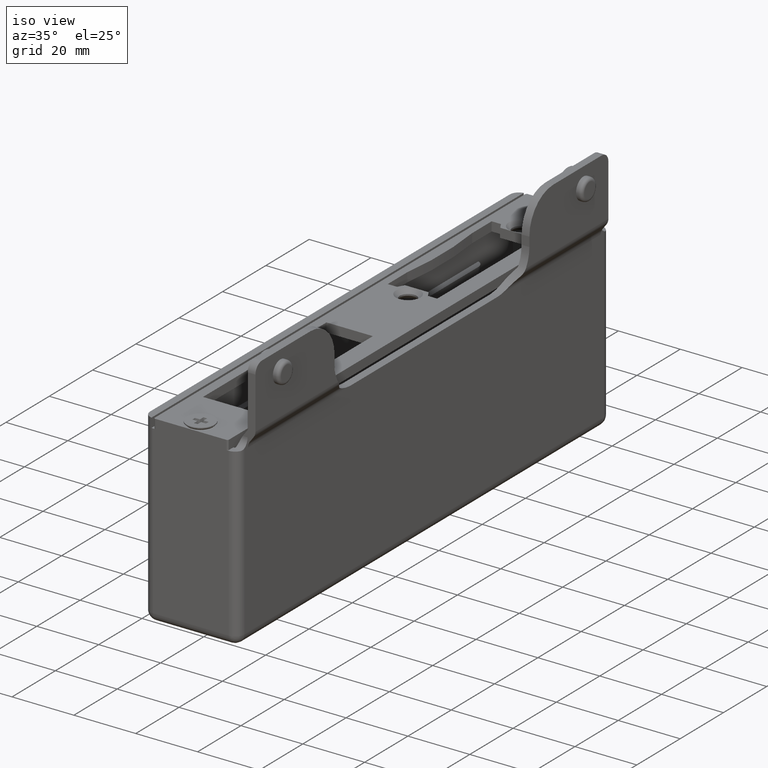
[diagram: clean part render]
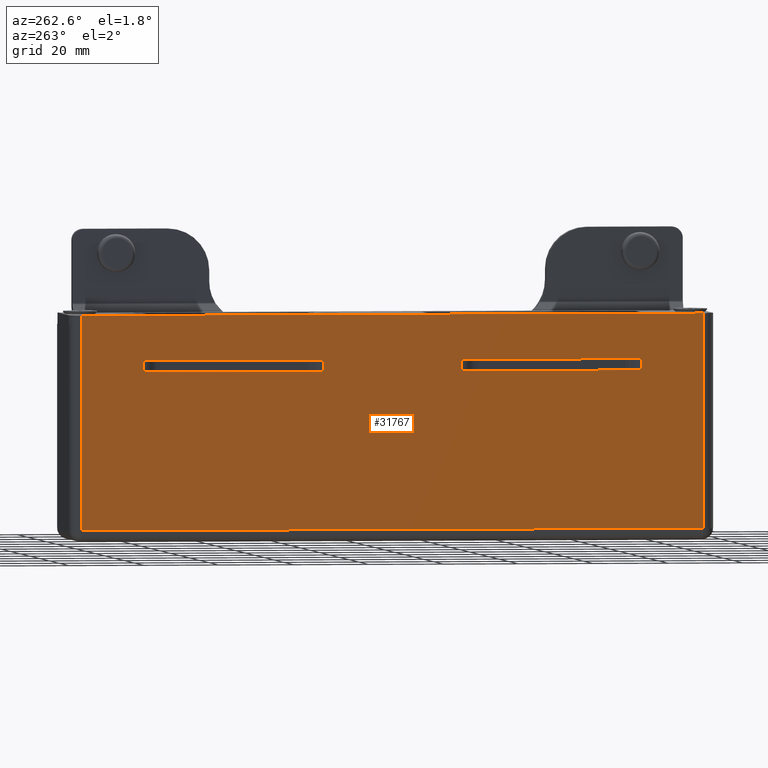
[diagram: tour spotlight — one face highlighted and labeled with its STEP entity id]
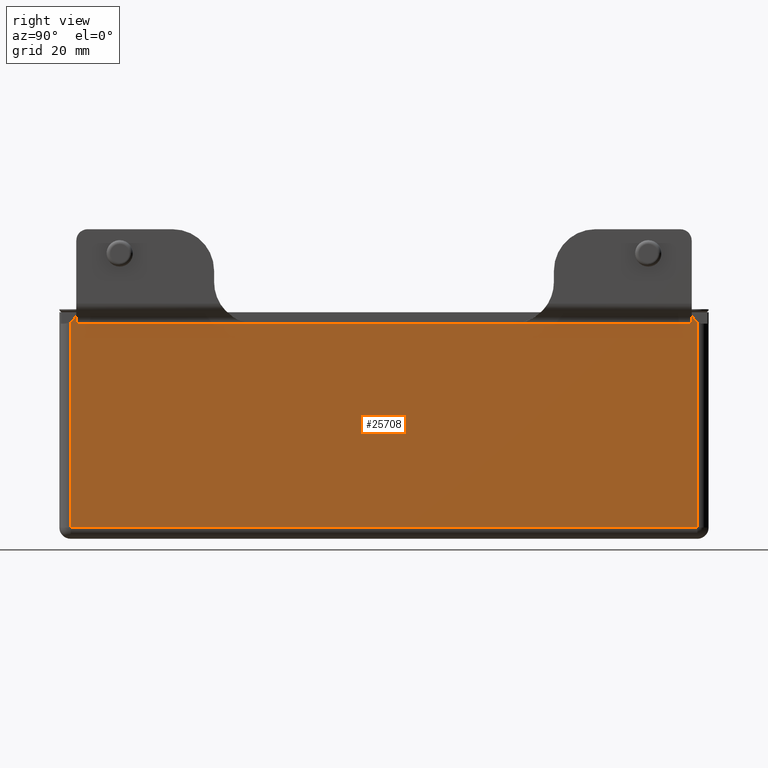
[diagram: tour spotlight — one face highlighted and labeled with its STEP entity id]
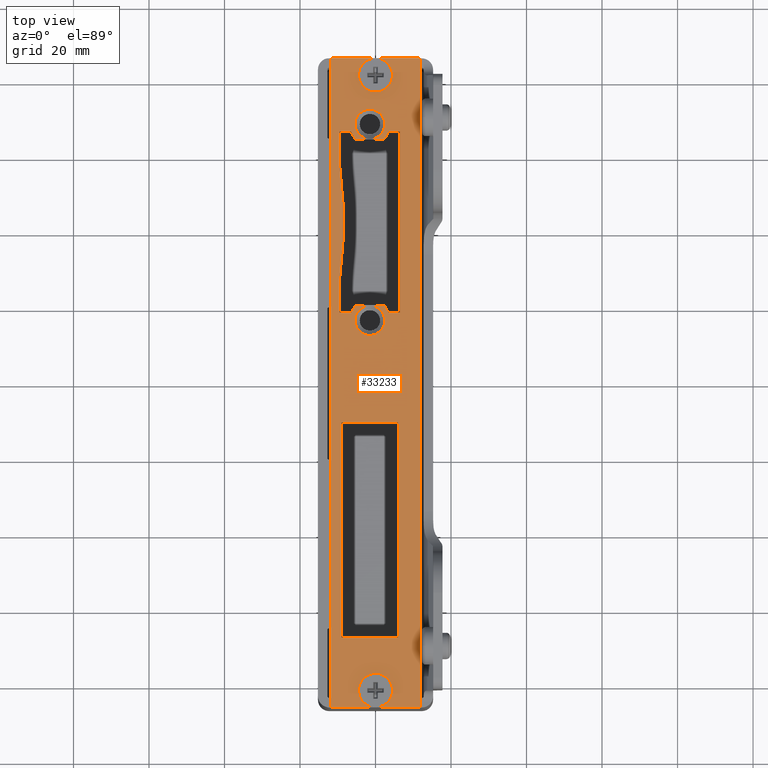
[diagram: tour spotlight — one face highlighted and labeled with its STEP entity id]
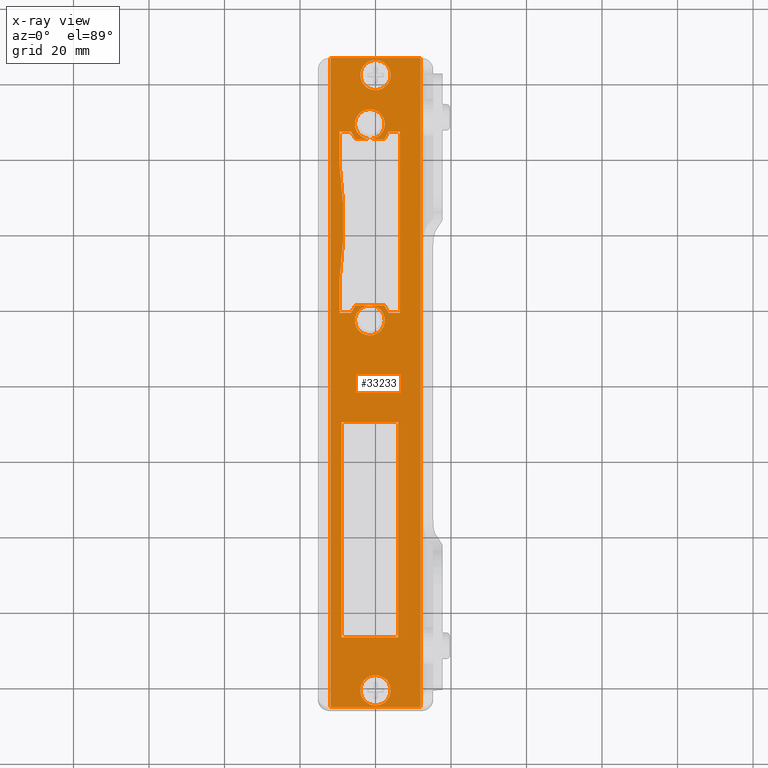
[diagram: x-ray of the same camera — body ghosted, this tour face saturated]
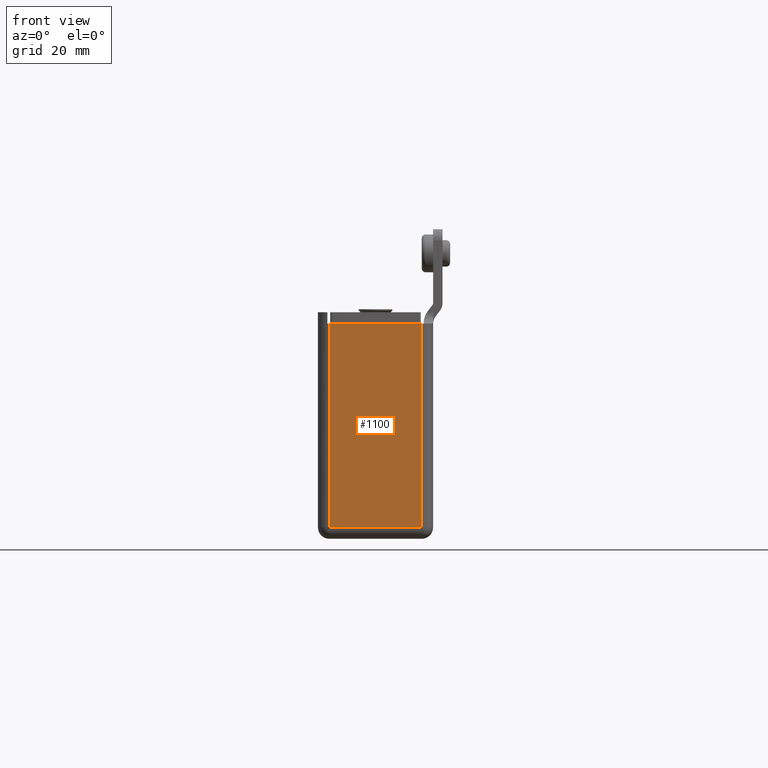
[diagram: tour spotlight — one face highlighted and labeled with its STEP entity id]
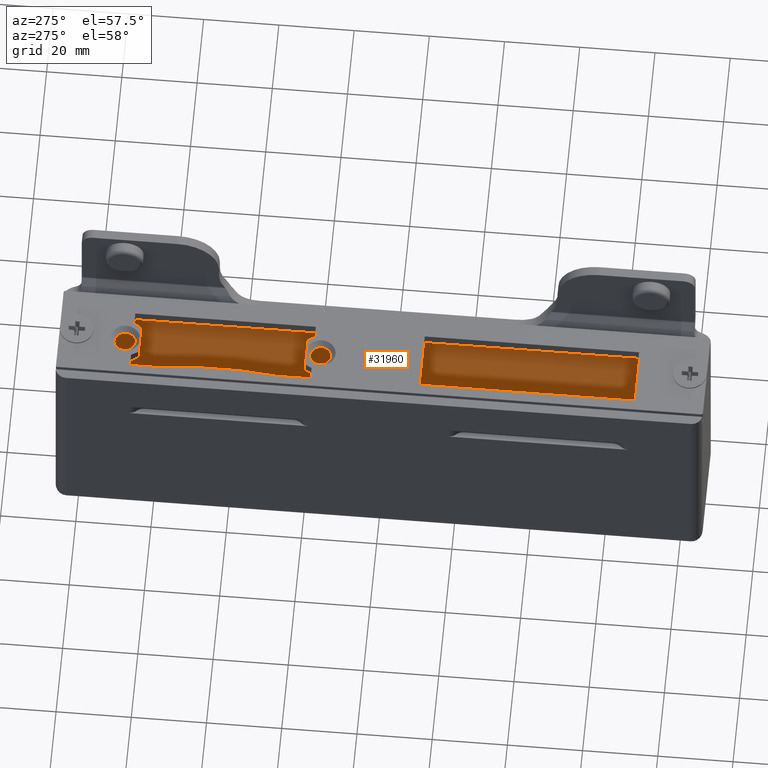
[diagram: tour spotlight — one face highlighted and labeled with its STEP entity id]
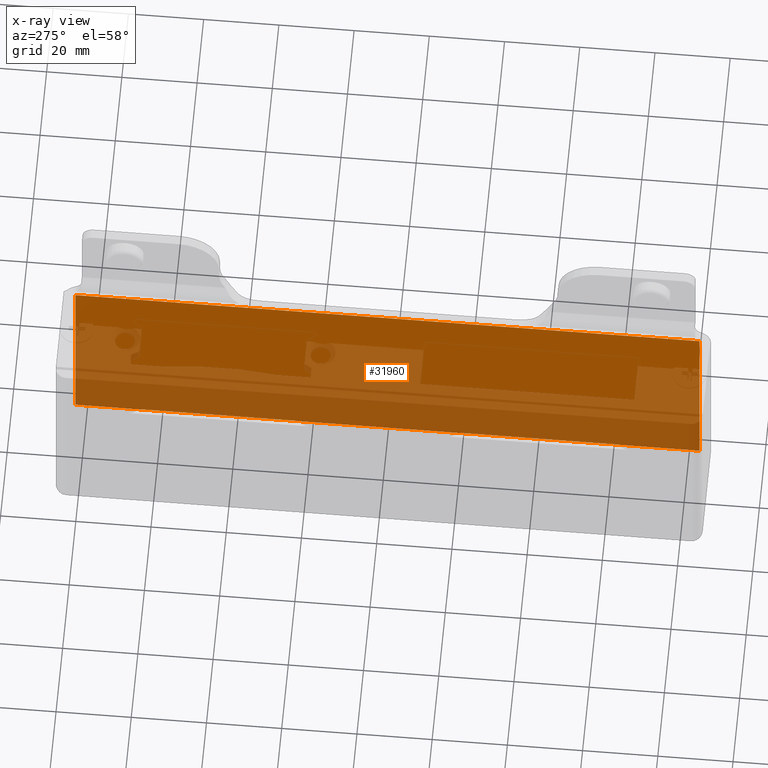
[diagram: x-ray of the same camera — body ghosted, this tour face saturated]
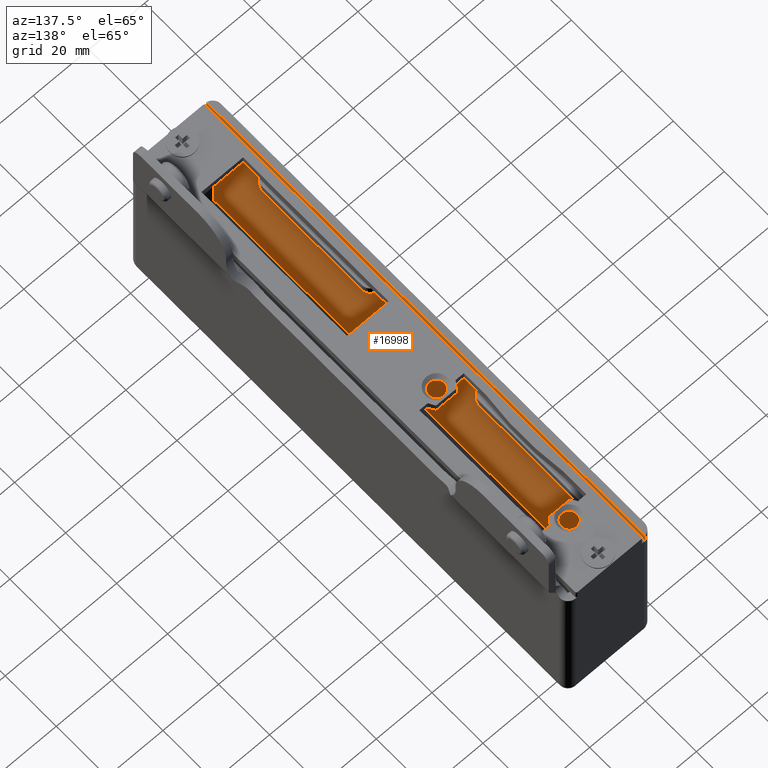
[diagram: tour spotlight — one face highlighted and labeled with its STEP entity id]
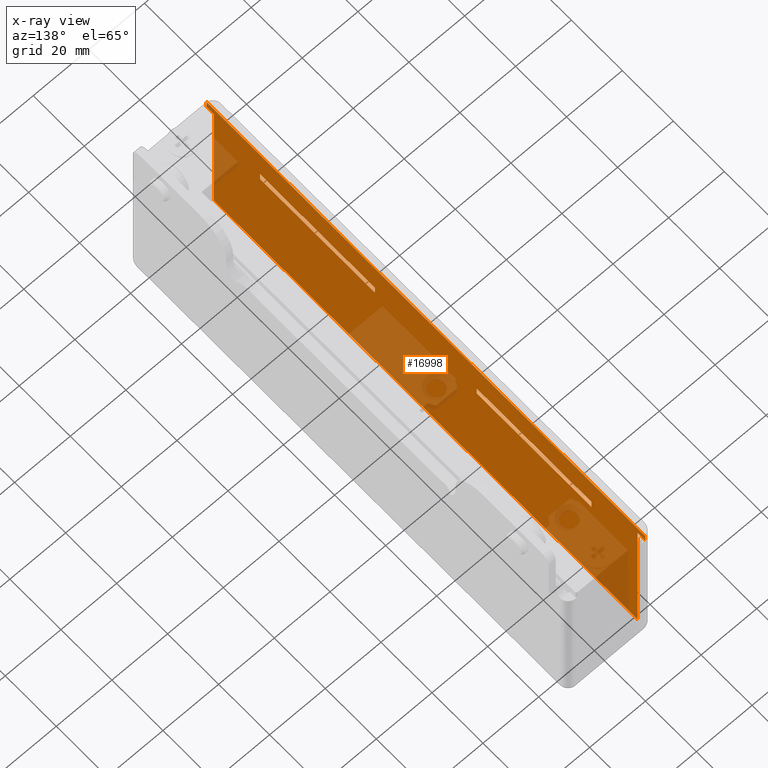
[diagram: x-ray of the same camera — body ghosted, this tour face saturated]
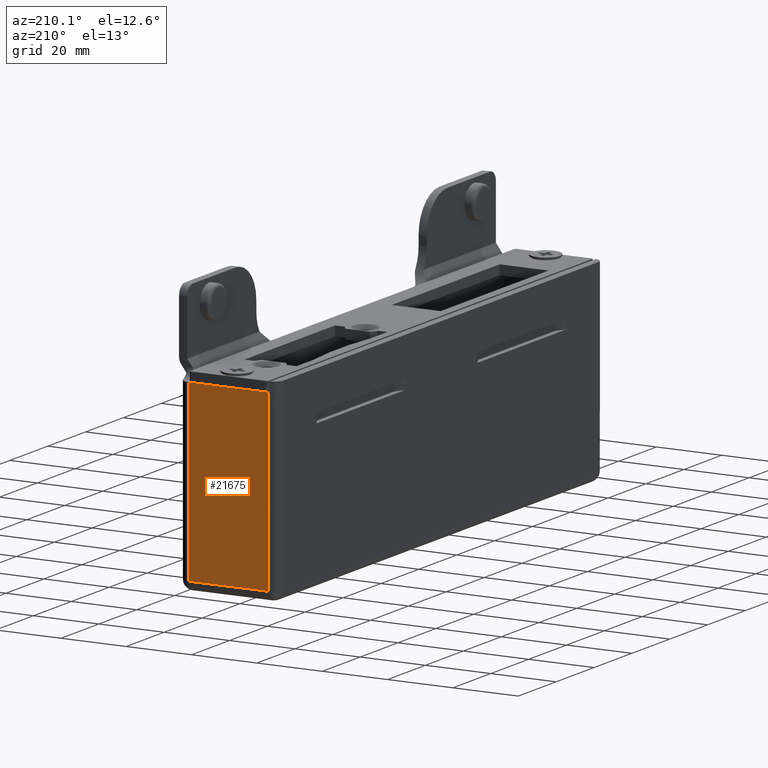
[diagram: tour spotlight — one face highlighted and labeled with its STEP entity id]
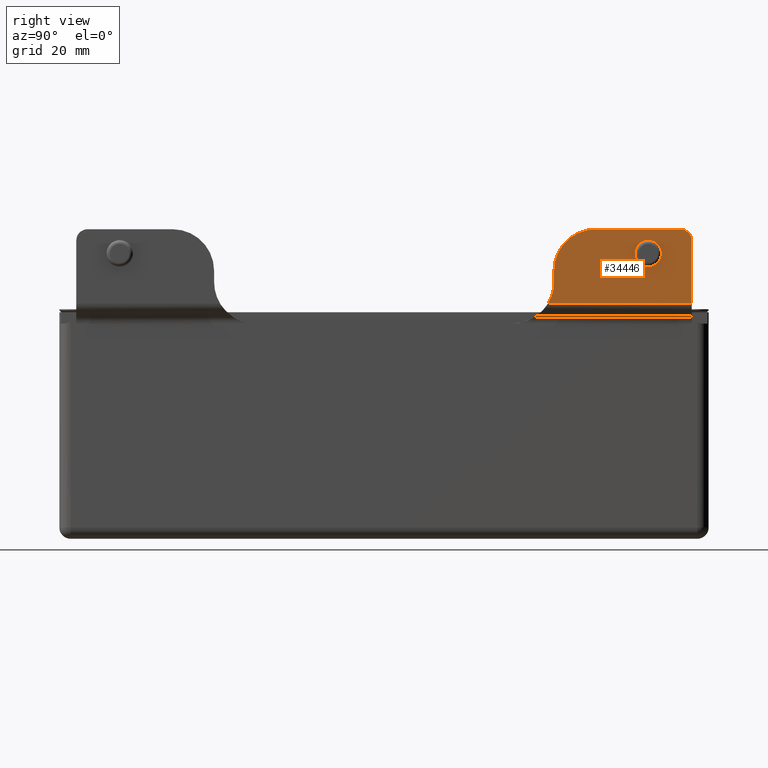
[diagram: tour spotlight — one face highlighted and labeled with its STEP entity id]
A machine part: a face-by-face anatomy tour. The part has 718 B-rep faces; the first image is the clean iso view, then the 8 largest visible faces are spotlighted one at a time (largest first), each with its STEP entity span.

Face 1 — auxiliary view, entity #31767. In plain terms, the highlighted planar face has unit normal (1, 0, 0).
Definition (entity closure, byte-faithful):
#103 = VERTEX_POINT ( 'NONE', #4294 ) ;
#242 = CARTESIAN_POINT ( 'NONE',  ( -15.25000000000000000, -18.51920597633762000, 28.50000000000000000 ) ) ;
#407 = VECTOR ( 'NONE', #24442, 1000.000000000000000 ) ;
#649 = VERTEX_POINT ( 'NONE', #2527 ) ;
#880 = DIRECTION ( 'NONE',  ( -0.000000000000000000, -0.000000000000000000, 1.000000000000000000 ) ) ;
#960 = CARTESIAN_POINT ( 'NONE',  ( -15.24999999999999112, -82.99999999999997158, 28.50000000000000000 ) ) ;
#1018 = LINE ( 'NONE', #242, #31151 ) ;
#1425 = ORIENTED_EDGE ( 'NONE', *, *, #22381, .T. ) ;
#1651 = CARTESIAN_POINT ( 'NONE',  ( -15.25000000000001243, 86.00000000000000000, 28.50000000000000000 ) ) ;
#2527 = CARTESIAN_POINT ( 'NONE',  ( -15.25000000000001066, 66.48079402366236934, 19.50000000000000355 ) ) ;
#2553 = LINE ( 'NONE', #26748, #407 ) ;
#3080 = EDGE_LOOP ( 'NONE', ( #17668, #1425, #4656, #14092 ) ) ;
#3174 = CARTESIAN_POINT ( 'NONE',  ( -15.25000000000001066, 66.48079402366236934, 28.50000000000000000 ) ) ;
#3493 = CARTESIAN_POINT ( 'NONE',  ( -15.24999999999999289, -66.48079402366236934, 19.50000000000000355 ) ) ;
#3916 = EDGE_CURVE ( 'NONE', #4584, #10045, #1018, .T. ) ;
#4274 = ORIENTED_EDGE ( 'NONE', *, *, #19258, .T. ) ;
#4294 = CARTESIAN_POINT ( 'NONE',  ( -15.24999999999999289, -66.48079402366236934, 16.50000000000000355 ) ) ;
#4584 = VERTEX_POINT ( 'NONE', #21150 ) ;
#4656 = ORIENTED_EDGE ( 'NONE', *, *, #13822, .T. ) ;
#4840 = VECTOR ( 'NONE', #28533, 1000.000000000000000 ) ;
#4939 = EDGE_CURVE ( 'NONE', #25641, #7587, #16907, .T. ) ;
#5259 = EDGE_CURVE ( 'NONE', #13116, #32924, #30670, .T. ) ;
#5830 = VECTOR ( 'NONE', #11520, 1000.000000000000000 ) ;
#6688 = DIRECTION ( 'NONE',  ( -1.210272192541958862E-16, 1.000000000000000000, 0.000000000000000000 ) ) ;
#6882 = EDGE_LOOP ( 'NONE', ( #4274, #14012, #27687, #16213 ) ) ;
#7261 = DIRECTION ( 'NONE',  ( -1.210272192541958862E-16, 1.000000000000000000, 0.000000000000000000 ) ) ;
#7587 = VERTEX_POINT ( 'NONE', #23876 ) ;
#7975 = LINE ( 'NONE', #23020, #32103 ) ;
#8419 = VECTOR ( 'NONE', #880, 1000.000000000000000 ) ;
#8520 = DIRECTION ( 'NONE',  ( -0.000000000000000000, -0.000000000000000000, 1.000000000000000000 ) ) ;
#9649 = CARTESIAN_POINT ( 'NONE',  ( -15.25000000000000355, 18.51920597633762000, 28.50000000000000000 ) ) ;
#9766 = ORIENTED_EDGE ( 'NONE', *, *, #18637, .T. ) ;
#10045 = VERTEX_POINT ( 'NONE', #33885 ) ;
#10260 = FACE_BOUND ( 'NONE', #6882, .T. ) ;
#11450 = VECTOR ( 'NONE', #21728, 1000.000000000000000 ) ;
#11520 = DIRECTION ( 'NONE',  ( -0.000000000000000000, -0.000000000000000000, -1.000000000000000000 ) ) ;
#11679 = ORIENTED_EDGE ( 'NONE', *, *, #22845, .F. ) ;
#12112 = DIRECTION ( 'NONE',  ( 1.000000000000000000, 1.210272192541958862E-16, -0.000000000000000000 ) ) ;
#12215 = EDGE_LOOP ( 'NONE', ( #9766, #27126, #11679, #13406 ) ) ;
#12564 = DIRECTION ( 'NONE',  ( 0.000000000000000000, 0.000000000000000000, -1.000000000000000000 ) ) ;
#13116 = VERTEX_POINT ( 'NONE', #27964 ) ;
#13406 = ORIENTED_EDGE ( 'NONE', *, *, #21059, .T. ) ;
#13497 = CARTESIAN_POINT ( 'NONE',  ( -15.25000000000001243, 83.00000000000000000, 31.50000000000000000 ) ) ;
#13628 = VECTOR ( 'NONE', #27214, 1000.000000000000000 ) ;
#13822 = EDGE_CURVE ( 'NONE', #34582, #649, #17935, .T. ) ;
#14012 = ORIENTED_EDGE ( 'NONE', *, *, #14494, .T. ) ;
#14092 = ORIENTED_EDGE ( 'NONE', *, *, #21336, .F. ) ;
#14494 = EDGE_CURVE ( 'NONE', #103, #4584, #20977, .T. ) ;
#15298 = VECTOR ( 'NONE', #7261, 1000.000000000000000 ) ;
#15921 = DIRECTION ( 'NONE',  ( 1.254016970585643992E-16, -1.000000000000000000, 0.000000000000000000 ) ) ;
#16213 = ORIENTED_EDGE ( 'NONE', *, *, #30096, .F. ) ;
#16907 = LINE ( 'NONE', #9649, #33264 ) ;
#17668 = ORIENTED_EDGE ( 'NONE', *, *, #4939, .T. ) ;
#17802 = CARTESIAN_POINT ( 'NONE',  ( -15.25000000000001243, 83.00000000000000000, 31.50000000000000000 ) ) ;
#17935 = LINE ( 'NONE', #3174, #8419 ) ;
#18359 = CARTESIAN_POINT ( 'NONE',  ( -15.25000000000001066, 66.48079402366236934, 16.50000000000000355 ) ) ;
#18400 = VERTEX_POINT ( 'NONE', #27423 ) ;
#18637 = EDGE_CURVE ( 'NONE', #18400, #13116, #25262, .T. ) ;
#19243 = CARTESIAN_POINT ( 'NONE',  ( -15.25000000000001243, 86.00000000000000000, 16.50000000000000355 ) ) ;
#19258 = EDGE_CURVE ( 'NONE', #24161, #103, #24816, .T. ) ;
#20108 = CARTESIAN_POINT ( 'NONE',  ( -15.24999999999999289, -66.48079402366236934, 28.50000000000000000 ) ) ;
#20977 = LINE ( 'NONE', #19243, #13628 ) ;
#21059 = EDGE_CURVE ( 'NONE', #28028, #18400, #21756, .T. ) ;
#21150 = CARTESIAN_POINT ( 'NONE',  ( -15.25000000000000000, -18.51920597633762000, 16.50000000000000355 ) ) ;
#21336 = EDGE_CURVE ( 'NONE', #25641, #649, #7975, .T. ) ;
#21728 = DIRECTION ( 'NONE',  ( 1.210272192541958862E-16, -1.000000000000000000, 0.000000000000000000 ) ) ;
#21756 = LINE ( 'NONE', #31691, #28219 ) ;
#22381 = EDGE_CURVE ( 'NONE', #7587, #34582, #22631, .T. ) ;
#22631 = LINE ( 'NONE', #29201, #15298 ) ;
#22845 = EDGE_CURVE ( 'NONE', #28028, #32924, #29502, .T. ) ;
#22959 = CARTESIAN_POINT ( 'NONE',  ( -15.25000000000000355, 18.51920597633762000, 19.50000000000000355 ) ) ;
#23020 = CARTESIAN_POINT ( 'NONE',  ( -15.25000000000001243, 86.00000000000000000, 19.50000000000000355 ) ) ;
#23876 = CARTESIAN_POINT ( 'NONE',  ( -15.25000000000000355, 18.51920597633762000, 16.50000000000000355 ) ) ;
#24161 = VERTEX_POINT ( 'NONE', #3493 ) ;
#24442 = DIRECTION ( 'NONE',  ( -1.210272192541958862E-16, 1.000000000000000000, 0.000000000000000000 ) ) ;
#24816 = LINE ( 'NONE', #20108, #5830 ) ;
#25262 = LINE ( 'NONE', #35435, #11450 ) ;
#25641 = VERTEX_POINT ( 'NONE', #22959 ) ;
#26655 = FACE_BOUND ( 'NONE', #3080, .T. ) ;
#26748 = CARTESIAN_POINT ( 'NONE',  ( -15.25000000000001243, 86.00000000000000000, 19.50000000000000355 ) ) ;
#27126 = ORIENTED_EDGE ( 'NONE', *, *, #5259, .T. ) ;
#27214 = DIRECTION ( 'NONE',  ( -1.210272192541958862E-16, 1.000000000000000000, 0.000000000000000000 ) ) ;
#27423 = CARTESIAN_POINT ( 'NONE',  ( -15.25000000000001243, 83.00000000000000000, -25.50000000000000355 ) ) ;
#27687 = ORIENTED_EDGE ( 'NONE', *, *, #3916, .T. ) ;
#27964 = CARTESIAN_POINT ( 'NONE',  ( -15.24999999999999112, -82.99999999999997158, -25.50000000000000355 ) ) ;
#28028 = VERTEX_POINT ( 'NONE', #17802 ) ;
#28219 = VECTOR ( 'NONE', #12564, 1000.000000000000000 ) ;
#28533 = DIRECTION ( 'NONE',  ( 0.000000000000000000, -0.000000000000000000, 1.000000000000000000 ) ) ;
#28633 = PLANE ( 'NONE',  #32658 ) ;
#29201 = CARTESIAN_POINT ( 'NONE',  ( -15.25000000000001243, 86.00000000000000000, 16.50000000000000355 ) ) ;
#29502 = LINE ( 'NONE', #13497, #35083 ) ;
#30096 = EDGE_CURVE ( 'NONE', #24161, #10045, #2553, .T. ) ;
#30485 = FACE_OUTER_BOUND ( 'NONE', #12215, .T. ) ;
#30670 = LINE ( 'NONE', #960, #4840 ) ;
#30701 = DIRECTION ( 'NONE',  ( -1.210272192541958862E-16, 1.000000000000000000, 0.000000000000000000 ) ) ;
#31151 = VECTOR ( 'NONE', #8520, 1000.000000000000000 ) ;
#31552 = DIRECTION ( 'NONE',  ( -0.000000000000000000, -0.000000000000000000, -1.000000000000000000 ) ) ;
#31691 = CARTESIAN_POINT ( 'NONE',  ( -15.25000000000001243, 83.00000000000000000, 28.50000000000000000 ) ) ;
#31767 = ADVANCED_FACE ( 'NONE', ( #26655, #10260, #30485 ), #28633, .F. ) ;
#32103 = VECTOR ( 'NONE', #30701, 1000.000000000000000 ) ;
#32658 = AXIS2_PLACEMENT_3D ( 'NONE', #1651, #12112, #6688 ) ;
#32924 = VERTEX_POINT ( 'NONE', #34656 ) ;
#33264 = VECTOR ( 'NONE', #31552, 1000.000000000000000 ) ;
#33885 = CARTESIAN_POINT ( 'NONE',  ( -15.25000000000000000, -18.51920597633762355, 19.50000000000000355 ) ) ;
#34582 = VERTEX_POINT ( 'NONE', #18359 ) ;
#34656 = CARTESIAN_POINT ( 'NONE',  ( -15.24999999999999112, -82.99999999999997158, 31.50000000000000000 ) ) ;
#35083 = VECTOR ( 'NONE', #15921, 1000.000000000000000 ) ;
#35435 = CARTESIAN_POINT ( 'NONE',  ( -15.25000000000001243, 86.00000000000000000, -25.50000000000000355 ) ) ;

Face 2 — right view, entity #25708. In plain terms, the highlighted planar face has unit normal (-1, -0, 0).
Definition (entity closure, byte-faithful):
#252 = CARTESIAN_POINT ( 'NONE',  ( 15.24999999999998757, 86.00000000000000000, -25.50000000000000355 ) ) ;
#349 = CARTESIAN_POINT ( 'NONE',  ( 15.24999999999999822, -34.00000000000000000, 28.50000000000000000 ) ) ;
#647 = DIRECTION ( 'NONE',  ( 0.000000000000000000, 0.000000000000000000, -1.000000000000000000 ) ) ;
#1476 = CARTESIAN_POINT ( 'NONE',  ( 15.24999999999998757, 84.50000000000000000, 31.50000000000000000 ) ) ;
#1796 = DIRECTION ( 'NONE',  ( 0.000000000000000000, -1.000000000000000000, 0.000000000000000000 ) ) ;
#1815 = LINE ( 'NONE', #9578, #10852 ) ;
#1848 = VERTEX_POINT ( 'NONE', #20317 ) ;
#2026 = VERTEX_POINT ( 'NONE', #33373 ) ;
#2268 = LINE ( 'NONE', #33721, #12166 ) ;
#2615 = LINE ( 'NONE', #252, #32771 ) ;
#2889 = AXIS2_PLACEMENT_3D ( 'NONE', #18296, #11759, #9109 ) ;
#2997 = AXIS2_PLACEMENT_3D ( 'NONE', #1476, #9174, #17626 ) ;
#3034 = VERTEX_POINT ( 'NONE', #6183 ) ;
#3536 = EDGE_CURVE ( 'NONE', #13186, #3034, #26485, .T. ) ;
#3987 = DIRECTION ( 'NONE',  ( -0.000000000000000000, -0.000000000000000000, 1.000000000000000000 ) ) ;
#4323 = VERTEX_POINT ( 'NONE', #27551 ) ;
#5674 = EDGE_CURVE ( 'NONE', #28961, #8864, #1815, .T. ) ;
#6183 = CARTESIAN_POINT ( 'NONE',  ( 15.24999999999998757, 81.50000000000000000, 31.50000000000000000 ) ) ;
#6338 = VECTOR ( 'NONE', #30999, 1000.000000000000000 ) ;
#6571 = EDGE_CURVE ( 'NONE', #21507, #28961, #2268, .T. ) ;
#6692 = EDGE_CURVE ( 'NONE', #1848, #13186, #27699, .T. ) ;
#7548 = CARTESIAN_POINT ( 'NONE',  ( 15.25000000000000888, -81.50000000000000000, 28.50000000000000000 ) ) ;
#8864 = VERTEX_POINT ( 'NONE', #349 ) ;
#9109 = DIRECTION ( 'NONE',  ( 1.210272192541958862E-16, -1.000000000000000000, 0.000000000000000000 ) ) ;
#9166 = EDGE_CURVE ( 'NONE', #15810, #22455, #18559, .T. ) ;
#9174 = DIRECTION ( 'NONE',  ( -1.000000000000000000, -1.210272192541958862E-16, 0.000000000000000000 ) ) ;
#9526 = ORIENTED_EDGE ( 'NONE', *, *, #16097, .T. ) ;
#9578 = CARTESIAN_POINT ( 'NONE',  ( 15.24999999999999289, 81.50000000000000000, 28.50000000000000000 ) ) ;
#9894 = ORIENTED_EDGE ( 'NONE', *, *, #28906, .T. ) ;
#10097 = DIRECTION ( 'NONE',  ( -1.000000000000000000, -1.210272192541958862E-16, 0.000000000000000000 ) ) ;
#10347 = VECTOR ( 'NONE', #12992, 1000.000000000000000 ) ;
#10852 = VECTOR ( 'NONE', #15003, 1000.000000000000000 ) ;
#11124 = EDGE_CURVE ( 'NONE', #4323, #2026, #21048, .T. ) ;
#11544 = DIRECTION ( 'NONE',  ( -0.000000000000000000, -1.000000000000000000, -0.000000000000000000 ) ) ;
#11759 = DIRECTION ( 'NONE',  ( -1.000000000000000000, -1.210272192541958862E-16, 0.000000000000000000 ) ) ;
#11894 = CARTESIAN_POINT ( 'NONE',  ( 15.25000000000000888, -81.50000000000000000, 31.50000000000000000 ) ) ;
#11900 = AXIS2_PLACEMENT_3D ( 'NONE', #18307, #10097, #1796 ) ;
#11910 = CARTESIAN_POINT ( 'NONE',  ( 15.24999999999998757, 83.00000000000000000, 28.90192378864668399 ) ) ;
#12166 = VECTOR ( 'NONE', #11544, 1000.000000000000000 ) ;
#12453 = CARTESIAN_POINT ( 'NONE',  ( 15.24999999999999822, -81.50000000000000000, 28.50000000000000000 ) ) ;
#12469 = ORIENTED_EDGE ( 'NONE', *, *, #6692, .T. ) ;
#12850 = DIRECTION ( 'NONE',  ( 0.000000000000000000, 0.000000000000000000, 1.000000000000000000 ) ) ;
#12992 = DIRECTION ( 'NONE',  ( 0.000000000000000000, 0.000000000000000000, -1.000000000000000000 ) ) ;
#13186 = VERTEX_POINT ( 'NONE', #11910 ) ;
#14376 = CARTESIAN_POINT ( 'NONE',  ( 15.25000000000000888, -82.99999999999997158, 28.50000000000000000 ) ) ;
#15003 = DIRECTION ( 'NONE',  ( -0.000000000000000000, -1.000000000000000000, -0.000000000000000000 ) ) ;
#15207 = ORIENTED_EDGE ( 'NONE', *, *, #3536, .T. ) ;
#15398 = PLANE ( 'NONE',  #2889 ) ;
#15545 = ORIENTED_EDGE ( 'NONE', *, *, #5674, .T. ) ;
#15618 = FACE_OUTER_BOUND ( 'NONE', #24477, .T. ) ;
#15810 = VERTEX_POINT ( 'NONE', #11894 ) ;
#16097 = EDGE_CURVE ( 'NONE', #15810, #4323, #25823, .T. ) ;
#17071 = CARTESIAN_POINT ( 'NONE',  ( 15.24999999999999822, 81.50000000000000000, 28.50000000000000000 ) ) ;
#17575 = EDGE_CURVE ( 'NONE', #8864, #22455, #20611, .T. ) ;
#17626 = DIRECTION ( 'NONE',  ( 0.000000000000000000, -1.000000000000000000, 0.000000000000000000 ) ) ;
#18296 = CARTESIAN_POINT ( 'NONE',  ( 15.24999999999998757, 86.00000000000000000, 28.50000000000000000 ) ) ;
#18307 = CARTESIAN_POINT ( 'NONE',  ( 15.25000000000000888, -84.50000000000000000, 31.50000000000000000 ) ) ;
#18503 = ORIENTED_EDGE ( 'NONE', *, *, #17575, .T. ) ;
#18559 = LINE ( 'NONE', #7548, #10347 ) ;
#20317 = CARTESIAN_POINT ( 'NONE',  ( 15.24999999999998757, 83.00000000000000000, -25.50000000000000355 ) ) ;
#20611 = LINE ( 'NONE', #17071, #6338 ) ;
#21048 = LINE ( 'NONE', #14376, #27491 ) ;
#21507 = VERTEX_POINT ( 'NONE', #34775 ) ;
#22455 = VERTEX_POINT ( 'NONE', #12453 ) ;
#23250 = CARTESIAN_POINT ( 'NONE',  ( 15.24999999999998757, 83.00000000000000000, 28.50000000000000000 ) ) ;
#23608 = ORIENTED_EDGE ( 'NONE', *, *, #9166, .F. ) ;
#24477 = EDGE_LOOP ( 'NONE', ( #30726, #15545, #18503, #23608, #9526, #31094, #9894, #12469, #15207, #29457 ) ) ;
#25708 = ADVANCED_FACE ( 'NONE', ( #15618 ), #15398, .F. ) ;
#25823 = CIRCLE ( 'NONE', #11900, 3.000000000000002665 ) ;
#26485 = CIRCLE ( 'NONE', #2997, 3.000000000000002665 ) ;
#27491 = VECTOR ( 'NONE', #647, 1000.000000000000000 ) ;
#27551 = CARTESIAN_POINT ( 'NONE',  ( 15.25000000000000888, -82.99999999999997158, 28.90192378864669820 ) ) ;
#27699 = LINE ( 'NONE', #23250, #34977 ) ;
#28544 = CARTESIAN_POINT ( 'NONE',  ( 15.24999999999999289, 34.00000000000000000, 28.50000000000000000 ) ) ;
#28906 = EDGE_CURVE ( 'NONE', #2026, #1848, #2615, .T. ) ;
#28961 = VERTEX_POINT ( 'NONE', #28544 ) ;
#29398 = EDGE_CURVE ( 'NONE', #21507, #3034, #35338, .T. ) ;
#29457 = ORIENTED_EDGE ( 'NONE', *, *, #29398, .F. ) ;
#30568 = DIRECTION ( 'NONE',  ( -1.210272192541958862E-16, 1.000000000000000000, 0.000000000000000000 ) ) ;
#30726 = ORIENTED_EDGE ( 'NONE', *, *, #6571, .T. ) ;
#30999 = DIRECTION ( 'NONE',  ( -0.000000000000000000, -1.000000000000000000, -0.000000000000000000 ) ) ;
#31094 = ORIENTED_EDGE ( 'NONE', *, *, #11124, .T. ) ;
#31976 = CARTESIAN_POINT ( 'NONE',  ( 15.24999999999998757, 81.50000000000000000, 0.000000000000000000 ) ) ;
#32771 = VECTOR ( 'NONE', #30568, 1000.000000000000000 ) ;
#33373 = CARTESIAN_POINT ( 'NONE',  ( 15.25000000000000888, -82.99999999999997158, -25.50000000000000355 ) ) ;
#33721 = CARTESIAN_POINT ( 'NONE',  ( 15.24999999999999822, 81.50000000000000000, 28.50000000000000000 ) ) ;
#34027 = VECTOR ( 'NONE', #12850, 1000.000000000000000 ) ;
#34775 = CARTESIAN_POINT ( 'NONE',  ( 15.24999999999998757, 81.50000000000000000, 28.50000000000000000 ) ) ;
#34977 = VECTOR ( 'NONE', #3987, 1000.000000000000000 ) ;
#35338 = LINE ( 'NONE', #31976, #34027 ) ;

Face 3 — top view, entity #33233. An x-ray twin of the same camera follows (body ghosted, this face saturated) — the face is partly hidden behind the body. In plain terms, the highlighted planar face has unit normal (0, 0, 1).
Definition (entity closure, byte-faithful):
#111 = VERTEX_POINT ( 'NONE', #31856 ) ;
#183 = VERTEX_POINT ( 'NONE', #34710 ) ;
#270 = DIRECTION ( 'NONE',  ( -0.4999999999999937828, 0.8660254037844422603, -0.000000000000000000 ) ) ;
#369 = VERTEX_POINT ( 'NONE', #11813 ) ;
#436 = ORIENTED_EDGE ( 'NONE', *, *, #28128, .F. ) ;
#749 = VERTEX_POINT ( 'NONE', #21691 ) ;
#916 = DIRECTION ( 'NONE',  ( 0.4999999999999978351, -0.8660254037844399289, 0.000000000000000000 ) ) ;
#1027 = DIRECTION ( 'NONE',  ( 0.000000000000000000, -0.000000000000000000, -1.000000000000000000 ) ) ;
#1201 = CARTESIAN_POINT ( 'NONE',  ( -9.500000000000012434, 27.49999999999998934, 3.000000000000002665 ) ) ;
#1438 = CIRCLE ( 'NONE', #33903, 4.000000000000017764 ) ;
#1443 = DIRECTION ( 'NONE',  ( -1.927470528863123979E-16, -1.000000000000000000, 0.000000000000000000 ) ) ;
#1478 = DIRECTION ( 'NONE',  ( 1.000000000000000000, 0.000000000000000000, 0.000000000000000000 ) ) ;
#1597 = LINE ( 'NONE', #25768, #10229 ) ;
#1771 = CARTESIAN_POINT ( 'NONE',  ( -9.000000000000007105, -10.49999999999998934, 3.000000000000002665 ) ) ;
#2070 = EDGE_CURVE ( 'NONE', #749, #17573, #25231, .T. ) ;
#2392 = EDGE_CURVE ( 'NONE', #14536, #34854, #29920, .T. ) ;
#2469 = EDGE_CURVE ( 'NONE', #22192, #22192, #21348, .T. ) ;
#2624 = EDGE_CURVE ( 'NONE', #14464, #32607, #16594, .T. ) ;
#2754 = CARTESIAN_POINT ( 'NONE',  ( -9.000000000000007105, -10.49999999999998934, 3.000000000000002665 ) ) ;
#2828 = DIRECTION ( 'NONE',  ( 1.000000000000000000, 0.000000000000000000, 0.000000000000000000 ) ) ;
#2851 = DIRECTION ( 'NONE',  ( -1.000000000000000000, -0.000000000000000000, -0.000000000000000000 ) ) ;
#2861 = LINE ( 'NONE', #19568, #22262 ) ;
#2982 = DIRECTION ( 'NONE',  ( 1.000000000000000000, 0.000000000000000000, 0.000000000000000000 ) ) ;
#3063 = VERTEX_POINT ( 'NONE', #22836 ) ;
#3451 = DIRECTION ( 'NONE',  ( 1.000000000000000000, 0.000000000000000000, 0.000000000000000000 ) ) ;
#3994 = VECTOR ( 'NONE', #28418, 1000.000000000000000 ) ;
#4014 = VERTEX_POINT ( 'NONE', #8639 ) ;
#4019 = EDGE_CURVE ( 'NONE', #32607, #29988, #20867, .T. ) ;
#4296 = CARTESIAN_POINT ( 'NONE',  ( 5.999999999999993783, -10.49999999999998934, 3.000000000000002665 ) ) ;
#4396 = EDGE_CURVE ( 'NONE', #5347, #5347, #1438, .T. ) ;
#4597 = CARTESIAN_POINT ( 'NONE',  ( -121.5000000000017195, 42.50000000000009237, 3.000000000000002665 ) ) ;
#4820 = ORIENTED_EDGE ( 'NONE', *, *, #2469, .T. ) ;
#4899 = CARTESIAN_POINT ( 'NONE',  ( 3.499999999999979572, 66.50000000000000000, 3.000000000000002665 ) ) ;
#5194 = VERTEX_POINT ( 'NONE', #19625 ) ;
#5311 = EDGE_CURVE ( 'NONE', #19972, #6843, #16058, .T. ) ;
#5347 = VERTEX_POINT ( 'NONE', #34827 ) ;
#5605 = CARTESIAN_POINT ( 'NONE',  ( -11.99999999999999822, 86.00000000000000000, 3.000000000000002665 ) ) ;
#5620 = CARTESIAN_POINT ( 'NONE',  ( 11.50000000000000178, 85.49999999999998579, 3.000000000000002665 ) ) ;
#5802 = DIRECTION ( 'NONE',  ( 1.000000000000000000, 0.000000000000000000, 0.000000000000000000 ) ) ;
#5949 = ORIENTED_EDGE ( 'NONE', *, *, #10748, .F. ) ;
#6015 = CARTESIAN_POINT ( 'NONE',  ( -9.500000000000014211, 18.50000000000001421, 3.000000000000002665 ) ) ;
#6369 = VERTEX_POINT ( 'NONE', #16059 ) ;
#6506 = DIRECTION ( 'NONE',  ( -0.000000000000000000, 0.000000000000000000, 1.000000000000000000 ) ) ;
#6669 = CARTESIAN_POINT ( 'NONE',  ( 2.345299461620746317, 20.50000000000001066, 3.000000000000002665 ) ) ;
#6713 = CARTESIAN_POINT ( 'NONE',  ( 2.345299461620746317, 64.50000000000000000, 3.000000000000002665 ) ) ;
#6843 = VERTEX_POINT ( 'NONE', #13476 ) ;
#7270 = VERTEX_POINT ( 'NONE', #14370 ) ;
#7481 = ORIENTED_EDGE ( 'NONE', *, *, #11378, .F. ) ;
#7528 = VECTOR ( 'NONE', #25069, 1000.000000000000000 ) ;
#7532 = EDGE_CURVE ( 'NONE', #30176, #7270, #35385, .T. ) ;
#7538 = CARTESIAN_POINT ( 'NONE',  ( -6.500000000000009770, 18.50000000000001421, 3.000000000000002665 ) ) ;
#7566 = CARTESIAN_POINT ( 'NONE',  ( -11.99999999999999822, 85.49999999999998579, 3.000000000000002665 ) ) ;
#7645 = DIRECTION ( 'NONE',  ( -1.065181081740144783E-16, 1.000000000000000000, -0.000000000000000000 ) ) ;
#7879 = LINE ( 'NONE', #6713, #9617 ) ;
#7990 = EDGE_CURVE ( 'NONE', #369, #32913, #25899, .T. ) ;
#8290 = CARTESIAN_POINT ( 'NONE',  ( 2.345299461620746317, 64.50000000000000000, 3.000000000000002665 ) ) ;
#8362 = ORIENTED_EDGE ( 'NONE', *, *, #4019, .T. ) ;
#8639 = CARTESIAN_POINT ( 'NONE',  ( 12.00000000000000178, 85.49999999999998579, 3.000000000000002665 ) ) ;
#8661 = LINE ( 'NONE', #12540, #33234 ) ;
#8676 = ORIENTED_EDGE ( 'NONE', *, *, #27429, .T. ) ;
#8773 = DIRECTION ( 'NONE',  ( 1.000000000000000000, 0.000000000000000000, 0.000000000000000000 ) ) ;
#8783 = ORIENTED_EDGE ( 'NONE', *, *, #19198, .F. ) ;
#8873 = LINE ( 'NONE', #28912, #19231 ) ;
#9062 = EDGE_LOOP ( 'NONE', ( #32538 ) ) ;
#9082 = VECTOR ( 'NONE', #2851, 1000.000000000000000 ) ;
#9085 = DIRECTION ( 'NONE',  ( 0.000000000000000000, -0.000000000000000000, -1.000000000000000000 ) ) ;
#9163 = DIRECTION ( 'NONE',  ( 1.000000000000000000, 0.000000000000000000, 0.000000000000000000 ) ) ;
#9382 = ORIENTED_EDGE ( 'NONE', *, *, #30672, .F. ) ;
#9617 = VECTOR ( 'NONE', #9843, 1000.000000000000000 ) ;
#9660 = VERTEX_POINT ( 'NONE', #13912 ) ;
#9843 = DIRECTION ( 'NONE',  ( -0.4999999999999937828, -0.8660254037844422603, -0.000000000000000000 ) ) ;
#9851 = VECTOR ( 'NONE', #19490, 1000.000000000000000 ) ;
#10229 = VECTOR ( 'NONE', #33949, 1000.000000000000000 ) ;
#10237 = CARTESIAN_POINT ( 'NONE',  ( -9.500000000000023093, 57.50000000000031974, 3.000000000000002665 ) ) ;
#10661 = ORIENTED_EDGE ( 'NONE', *, *, #33480, .T. ) ;
#10701 = CIRCLE ( 'NONE', #13076, 0.5000000000000004441 ) ;
#10748 = EDGE_CURVE ( 'NONE', #10964, #111, #25375, .T. ) ;
#10964 = VERTEX_POINT ( 'NONE', #1771 ) ;
#11236 = DIRECTION ( 'NONE',  ( 1.000000000000000000, 0.000000000000000000, 0.000000000000000000 ) ) ;
#11378 = EDGE_CURVE ( 'NONE', #14218, #15912, #18893, .T. ) ;
#11530 = VECTOR ( 'NONE', #27267, 1000.000000000000000 ) ;
#11535 = EDGE_CURVE ( 'NONE', #15912, #30493, #33941, .T. ) ;
#11540 = CARTESIAN_POINT ( 'NONE',  ( -11.99999999999999822, -85.49999999999998579, 3.000000000000002665 ) ) ;
#11813 = CARTESIAN_POINT ( 'NONE',  ( 11.50000000000000178, 86.00000000000000000, 3.000000000000002665 ) ) ;
#11898 = FACE_OUTER_BOUND ( 'NONE', #25112, .T. ) ;
#12037 = ORIENTED_EDGE ( 'NONE', *, *, #24687, .F. ) ;
#12043 = CIRCLE ( 'NONE', #12801, 3.949999999999995293 ) ;
#12106 = CARTESIAN_POINT ( 'NONE',  ( -9.500000000000014211, 66.50000000000002842, 3.000000000000002665 ) ) ;
#12307 = CARTESIAN_POINT ( 'NONE',  ( -2.363560736018399666E-14, 81.50000000000000000, 3.000000000000002665 ) ) ;
#12339 = EDGE_LOOP ( 'NONE', ( #8676 ) ) ;
#12461 = EDGE_LOOP ( 'NONE', ( #4820 ) ) ;
#12540 = CARTESIAN_POINT ( 'NONE',  ( 12.00000000000000178, 86.00000000000000000, 3.000000000000002665 ) ) ;
#12573 = CARTESIAN_POINT ( 'NONE',  ( 3.999999999999994227, 81.50000000000000000, 3.000000000000002665 ) ) ;
#12801 = AXIS2_PLACEMENT_3D ( 'NONE', #28367, #1027, #20537 ) ;
#12922 = DIRECTION ( 'NONE',  ( -0.000000000000000000, -0.000000000000000000, -1.000000000000000000 ) ) ;
#13076 = AXIS2_PLACEMENT_3D ( 'NONE', #34085, #6506, #9163 ) ;
#13352 = EDGE_CURVE ( 'NONE', #34854, #14711, #8873, .T. ) ;
#13358 = CARTESIAN_POINT ( 'NONE',  ( -1.500000000000009326, 16.50000000000001066, 3.000000000000002665 ) ) ;
#13476 = CARTESIAN_POINT ( 'NONE',  ( -6.500000000000009770, 18.50000000000001421, 3.000000000000002665 ) ) ;
#13513 = CARTESIAN_POINT ( 'NONE',  ( -9.000000000000000000, -67.49999999999998579, 3.000000000000002665 ) ) ;
#13805 = ORIENTED_EDGE ( 'NONE', *, *, #2392, .F. ) ;
#13912 = CARTESIAN_POINT ( 'NONE',  ( 12.00000000000000178, -85.49999999999998579, 3.000000000000002665 ) ) ;
#13936 = DIRECTION ( 'NONE',  ( -0.000000000000000000, 0.000000000000000000, 1.000000000000000000 ) ) ;
#13950 = VERTEX_POINT ( 'NONE', #26185 ) ;
#13988 = CARTESIAN_POINT ( 'NONE',  ( -6.500000000000009770, 66.50000000000000000, 3.000000000000002665 ) ) ;
#13991 = LINE ( 'NONE', #4296, #15292 ) ;
#13997 = ORIENTED_EDGE ( 'NONE', *, *, #32683, .F. ) ;
#14198 = DIRECTION ( 'NONE',  ( -0.000000000000000000, 0.000000000000000000, 1.000000000000000000 ) ) ;
#14218 = VERTEX_POINT ( 'NONE', #8290 ) ;
#14253 = ORIENTED_EDGE ( 'NONE', *, *, #5311, .F. ) ;
#14353 = LINE ( 'NONE', #1201, #33733 ) ;
#14370 = CARTESIAN_POINT ( 'NONE',  ( -9.500000000000012434, 27.49999999999998934, 3.000000000000002665 ) ) ;
#14464 = VERTEX_POINT ( 'NONE', #7566 ) ;
#14477 = CARTESIAN_POINT ( 'NONE',  ( -5.345299461620766301, 20.50000000000001066, 3.000000000000002665 ) ) ;
#14536 = VERTEX_POINT ( 'NONE', #16713 ) ;
#14538 = LINE ( 'NONE', #13513, #33045 ) ;
#14613 = EDGE_CURVE ( 'NONE', #4014, #369, #27584, .T. ) ;
#14648 = DIRECTION ( 'NONE',  ( -1.000000000000000000, 9.251858538542961178E-15, -0.000000000000000000 ) ) ;
#14711 = VERTEX_POINT ( 'NONE', #30883 ) ;
#14972 = AXIS2_PLACEMENT_3D ( 'NONE', #12307, #26044, #1478 ) ;
#15136 = LINE ( 'NONE', #12106, #34089 ) ;
#15292 = VECTOR ( 'NONE', #7645, 1000.000000000000000 ) ;
#15881 = ORIENTED_EDGE ( 'NONE', *, *, #2070, .F. ) ;
#15912 = VERTEX_POINT ( 'NONE', #20360 ) ;
#15977 = EDGE_LOOP ( 'NONE', ( #13997, #33247, #13805, #12037, #15881, #9382, #14253, #23570, #30243, #31877, #436, #18599, #7481, #19248 ) ) ;
#16058 = LINE ( 'NONE', #20231, #3994 ) ;
#16059 = CARTESIAN_POINT ( 'NONE',  ( -9.500000000000014211, 66.50000000000002842, 3.000000000000002665 ) ) ;
#16508 = EDGE_CURVE ( 'NONE', #3063, #9660, #19321, .T. ) ;
#16594 = LINE ( 'NONE', #32516, #17006 ) ;
#16658 = ORIENTED_EDGE ( 'NONE', *, *, #14613, .T. ) ;
#16659 = FACE_BOUND ( 'NONE', #12339, .T. ) ;
#16679 = DIRECTION ( 'NONE',  ( -0.000000000000000000, 0.000000000000000000, 1.000000000000000000 ) ) ;
#16713 = CARTESIAN_POINT ( 'NONE',  ( 3.499999999999990230, 18.50000000000001421, 3.000000000000002665 ) ) ;
#16956 = ORIENTED_EDGE ( 'NONE', *, *, #32494, .F. ) ;
#17006 = VECTOR ( 'NONE', #26772, 1000.000000000000000 ) ;
#17573 = VERTEX_POINT ( 'NONE', #22496 ) ;
#17592 = EDGE_CURVE ( 'NONE', #6369, #30176, #20163, .T. ) ;
#17911 = CARTESIAN_POINT ( 'NONE',  ( 0.000000000000000000, 0.000000000000000000, 3.000000000000002665 ) ) ;
#18028 = ORIENTED_EDGE ( 'NONE', *, *, #7990, .T. ) ;
#18403 = FACE_BOUND ( 'NONE', #9062, .T. ) ;
#18528 = AXIS2_PLACEMENT_3D ( 'NONE', #4597, #12922, #21116 ) ;
#18599 = ORIENTED_EDGE ( 'NONE', *, *, #11535, .F. ) ;
#18893 = LINE ( 'NONE', #33003, #11530 ) ;
#18895 = DIRECTION ( 'NONE',  ( 0.000000000000000000, -0.000000000000000000, -1.000000000000000000 ) ) ;
#19198 = EDGE_CURVE ( 'NONE', #5194, #10964, #28286, .T. ) ;
#19231 = VECTOR ( 'NONE', #21087, 1000.000000000000000 ) ;
#19248 = ORIENTED_EDGE ( 'NONE', *, *, #24236, .F. ) ;
#19286 = VECTOR ( 'NONE', #19963, 1000.000000000000000 ) ;
#19321 = CIRCLE ( 'NONE', #21182, 0.5000000000000004441 ) ;
#19490 = DIRECTION ( 'NONE',  ( 1.217349807703022609E-16, -1.000000000000000000, 0.000000000000000000 ) ) ;
#19568 = CARTESIAN_POINT ( 'NONE',  ( -11.99999999999999822, -86.00000000000000000, 3.000000000000002665 ) ) ;
#19625 = CARTESIAN_POINT ( 'NONE',  ( 5.999999999999993783, -10.49999999999998934, 3.000000000000002665 ) ) ;
#19963 = DIRECTION ( 'NONE',  ( -9.637352644315912266E-16, -1.000000000000000000, 0.000000000000000000 ) ) ;
#19972 = VERTEX_POINT ( 'NONE', #6015 ) ;
#20163 = LINE ( 'NONE', #22622, #19286 ) ;
#20231 = CARTESIAN_POINT ( 'NONE',  ( -9.500000000000014211, 18.50000000000001421, 3.000000000000002665 ) ) ;
#20360 = CARTESIAN_POINT ( 'NONE',  ( -5.345299461620776960, 64.50000000000000000, 3.000000000000002665 ) ) ;
#20453 = CARTESIAN_POINT ( 'NONE',  ( -6.500000000000009770, 66.50000000000000000, 3.000000000000002665 ) ) ;
#20537 = DIRECTION ( 'NONE',  ( 1.000000000000000000, 0.000000000000000000, 0.000000000000000000 ) ) ;
#20739 = EDGE_CURVE ( 'NONE', #30914, #5194, #13991, .T. ) ;
#20749 = DIRECTION ( 'NONE',  ( -0.000000000000000000, 1.000000000000000000, -0.000000000000000000 ) ) ;
#20867 = CIRCLE ( 'NONE', #32529, 0.5000000000000004441 ) ;
#21087 = DIRECTION ( 'NONE',  ( -2.891205793294685722E-16, 1.000000000000000000, -0.000000000000000000 ) ) ;
#21116 = DIRECTION ( 'NONE',  ( -1.000000000000000000, 0.000000000000000000, 0.000000000000000000 ) ) ;
#21177 = DIRECTION ( 'NONE',  ( 1.000000000000000000, 0.000000000000000000, 0.000000000000000000 ) ) ;
#21182 = AXIS2_PLACEMENT_3D ( 'NONE', #33269, #16679, #11236 ) ;
#21348 = CIRCLE ( 'NONE', #14972, 4.000000000000017764 ) ;
#21387 = AXIS2_PLACEMENT_3D ( 'NONE', #5620, #13936, #2982 ) ;
#21661 = VECTOR ( 'NONE', #916, 999.9999999999998863 ) ;
#21691 = CARTESIAN_POINT ( 'NONE',  ( -5.345299461620766301, 20.50000000000001066, 3.000000000000002665 ) ) ;
#22192 = VERTEX_POINT ( 'NONE', #12573 ) ;
#22262 = VECTOR ( 'NONE', #2828, 1000.000000000000000 ) ;
#22496 = CARTESIAN_POINT ( 'NONE',  ( 2.345299461620746317, 20.50000000000001066, 3.000000000000002665 ) ) ;
#22622 = CARTESIAN_POINT ( 'NONE',  ( -9.500000000000014211, 66.50000000000002842, 3.000000000000002665 ) ) ;
#22836 = CARTESIAN_POINT ( 'NONE',  ( 11.50000000000000178, -86.00000000000000000, 3.000000000000002665 ) ) ;
#23049 = AXIS2_PLACEMENT_3D ( 'NONE', #13358, #18895, #29610 ) ;
#23230 = VERTEX_POINT ( 'NONE', #4899 ) ;
#23387 = LINE ( 'NONE', #6669, #21661 ) ;
#23570 = ORIENTED_EDGE ( 'NONE', *, *, #24169, .F. ) ;
#23614 = ORIENTED_EDGE ( 'NONE', *, *, #25260, .T. ) ;
#23729 = AXIS2_PLACEMENT_3D ( 'NONE', #17911, #23932, #21177 ) ;
#23932 = DIRECTION ( 'NONE',  ( -0.000000000000000000, 0.000000000000000000, 1.000000000000000000 ) ) ;
#24049 = PLANE ( 'NONE',  #23729 ) ;
#24169 = EDGE_CURVE ( 'NONE', #7270, #19972, #14353, .T. ) ;
#24236 = EDGE_CURVE ( 'NONE', #23230, #14218, #7879, .T. ) ;
#24687 = EDGE_CURVE ( 'NONE', #17573, #14536, #23387, .T. ) ;
#24839 = FACE_BOUND ( 'NONE', #12461, .T. ) ;
#25069 = DIRECTION ( 'NONE',  ( 1.000000000000000000, 0.000000000000000000, 0.000000000000000000 ) ) ;
#25112 = EDGE_LOOP ( 'NONE', ( #10661, #30208, #23614, #16658, #18028, #35574, #34955, #8362 ) ) ;
#25231 = LINE ( 'NONE', #14477, #30796 ) ;
#25260 = EDGE_CURVE ( 'NONE', #9660, #4014, #8661, .T. ) ;
#25375 = LINE ( 'NONE', #33189, #9851 ) ;
#25749 = ORIENTED_EDGE ( 'NONE', *, *, #20739, .F. ) ;
#25768 = CARTESIAN_POINT ( 'NONE',  ( 3.499999999999979572, 66.50000000000000000, 3.000000000000002665 ) ) ;
#25818 = LINE ( 'NONE', #7538, #35715 ) ;
#25899 = LINE ( 'NONE', #5605, #9082 ) ;
#26044 = DIRECTION ( 'NONE',  ( 0.000000000000000000, -0.000000000000000000, -1.000000000000000000 ) ) ;
#26185 = CARTESIAN_POINT ( 'NONE',  ( 2.449999999999985967, 68.50000000000000000, 3.000000000000002665 ) ) ;
#26772 = DIRECTION ( 'NONE',  ( 0.000000000000000000, -1.000000000000000000, 0.000000000000000000 ) ) ;
#26839 = DIRECTION ( 'NONE',  ( 0.4999999999999978351, 0.8660254037844399289, 0.000000000000000000 ) ) ;
#27267 = DIRECTION ( 'NONE',  ( -1.000000000000000000, -0.000000000000000000, -0.000000000000000000 ) ) ;
#27429 = EDGE_CURVE ( 'NONE', #13950, #13950, #12043, .T. ) ;
#27584 = CIRCLE ( 'NONE', #21387, 0.5000000000000004441 ) ;
#27830 = VECTOR ( 'NONE', #33321, 1000.000000000000000 ) ;
#27848 = CARTESIAN_POINT ( 'NONE',  ( 3.499999999999990230, 18.50000000000001421, 3.000000000000002665 ) ) ;
#28128 = EDGE_CURVE ( 'NONE', #30493, #6369, #15136, .T. ) ;
#28214 = CARTESIAN_POINT ( 'NONE',  ( -11.49999999999999822, -86.00000000000000000, 3.000000000000002665 ) ) ;
#28286 = LINE ( 'NONE', #2754, #27830 ) ;
#28367 = CARTESIAN_POINT ( 'NONE',  ( -1.500000000000009326, 68.50000000000000000, 3.000000000000002665 ) ) ;
#28418 = DIRECTION ( 'NONE',  ( 1.000000000000000000, 0.000000000000000000, 0.000000000000000000 ) ) ;
#28579 = EDGE_LOOP ( 'NONE', ( #30473 ) ) ;
#28912 = CARTESIAN_POINT ( 'NONE',  ( 6.499999999999985789, 27.49999999999998934, 3.000000000000002665 ) ) ;
#29610 = DIRECTION ( 'NONE',  ( 1.000000000000000000, 0.000000000000000000, 0.000000000000000000 ) ) ;
#29618 = CIRCLE ( 'NONE', #23049, 3.950000000000036593 ) ;
#29633 = VECTOR ( 'NONE', #270, 1000.000000000000000 ) ;
#29920 = LINE ( 'NONE', #27848, #7528 ) ;
#29988 = VERTEX_POINT ( 'NONE', #28214 ) ;
#30065 = CARTESIAN_POINT ( 'NONE',  ( -11.49999999999999822, 86.00000000000000000, 3.000000000000002665 ) ) ;
#30176 = VERTEX_POINT ( 'NONE', #10237 ) ;
#30208 = ORIENTED_EDGE ( 'NONE', *, *, #16508, .T. ) ;
#30243 = ORIENTED_EDGE ( 'NONE', *, *, #7532, .F. ) ;
#30414 = FACE_BOUND ( 'NONE', #15977, .T. ) ;
#30473 = ORIENTED_EDGE ( 'NONE', *, *, #4396, .T. ) ;
#30493 = VERTEX_POINT ( 'NONE', #20453 ) ;
#30672 = EDGE_CURVE ( 'NONE', #6843, #749, #25818, .T. ) ;
#30683 = CARTESIAN_POINT ( 'NONE',  ( -11.49999999999999822, -85.49999999999998579, 3.000000000000002665 ) ) ;
#30796 = VECTOR ( 'NONE', #5802, 1000.000000000000000 ) ;
#30883 = CARTESIAN_POINT ( 'NONE',  ( 6.499999999999988454, 66.50000000000002842, 3.000000000000002665 ) ) ;
#30914 = VERTEX_POINT ( 'NONE', #31211 ) ;
#31211 = CARTESIAN_POINT ( 'NONE',  ( 6.000000000000000000, -67.49999999999998579, 3.000000000000002665 ) ) ;
#31246 = EDGE_CURVE ( 'NONE', #32913, #14464, #10701, .T. ) ;
#31443 = EDGE_LOOP ( 'NONE', ( #8783, #25749, #16956, #5949 ) ) ;
#31856 = CARTESIAN_POINT ( 'NONE',  ( -9.000000000000000000, -67.49999999999998579, 3.000000000000002665 ) ) ;
#31877 = ORIENTED_EDGE ( 'NONE', *, *, #17592, .F. ) ;
#32156 = FACE_BOUND ( 'NONE', #28579, .T. ) ;
#32494 = EDGE_CURVE ( 'NONE', #111, #30914, #14538, .T. ) ;
#32516 = CARTESIAN_POINT ( 'NONE',  ( -11.99999999999999822, 86.00000000000000000, 3.000000000000002665 ) ) ;
#32529 = AXIS2_PLACEMENT_3D ( 'NONE', #30683, #14198, #33449 ) ;
#32538 = ORIENTED_EDGE ( 'NONE', *, *, #32947, .T. ) ;
#32607 = VERTEX_POINT ( 'NONE', #11540 ) ;
#32683 = EDGE_CURVE ( 'NONE', #14711, #23230, #1597, .T. ) ;
#32913 = VERTEX_POINT ( 'NONE', #30065 ) ;
#32947 = EDGE_CURVE ( 'NONE', #183, #183, #29618, .T. ) ;
#33003 = CARTESIAN_POINT ( 'NONE',  ( -5.345299461620776960, 64.50000000000000000, 3.000000000000002665 ) ) ;
#33045 = VECTOR ( 'NONE', #8773, 1000.000000000000000 ) ;
#33189 = CARTESIAN_POINT ( 'NONE',  ( -9.000000000000007105, -10.49999999999998934, 3.000000000000002665 ) ) ;
#33233 = ADVANCED_FACE ( 'NONE', ( #32156, #18403, #16659, #24839, #11898, #34748, #30414 ), #24049, .T. ) ;
#33234 = VECTOR ( 'NONE', #20749, 1000.000000000000000 ) ;
#33247 = ORIENTED_EDGE ( 'NONE', *, *, #13352, .F. ) ;
#33269 = CARTESIAN_POINT ( 'NONE',  ( 11.50000000000000178, -85.49999999999998579, 3.000000000000002665 ) ) ;
#33321 = DIRECTION ( 'NONE',  ( -1.000000000000000000, -0.000000000000000000, -0.000000000000000000 ) ) ;
#33449 = DIRECTION ( 'NONE',  ( 1.000000000000000000, 0.000000000000000000, 0.000000000000000000 ) ) ;
#33480 = EDGE_CURVE ( 'NONE', #29988, #3063, #2861, .T. ) ;
#33733 = VECTOR ( 'NONE', #1443, 1000.000000000000000 ) ;
#33783 = CARTESIAN_POINT ( 'NONE',  ( -2.363560736018399666E-14, -81.50000000000000000, 3.000000000000002665 ) ) ;
#33903 = AXIS2_PLACEMENT_3D ( 'NONE', #33783, #9085, #3451 ) ;
#33941 = LINE ( 'NONE', #13988, #29633 ) ;
#33949 = DIRECTION ( 'NONE',  ( -1.000000000000000000, -9.251858538542943823E-15, -0.000000000000000000 ) ) ;
#34084 = CARTESIAN_POINT ( 'NONE',  ( 6.499999999999988454, 18.50000000000001421, 3.000000000000002665 ) ) ;
#34085 = CARTESIAN_POINT ( 'NONE',  ( -11.49999999999999822, 85.49999999999998579, 3.000000000000002665 ) ) ;
#34089 = VECTOR ( 'NONE', #14648, 1000.000000000000000 ) ;
#34710 = CARTESIAN_POINT ( 'NONE',  ( 2.450000000000027711, 16.50000000000001066, 3.000000000000002665 ) ) ;
#34748 = FACE_BOUND ( 'NONE', #31443, .T. ) ;
#34827 = CARTESIAN_POINT ( 'NONE',  ( 3.999999999999994227, -81.50000000000000000, 3.000000000000002665 ) ) ;
#34854 = VERTEX_POINT ( 'NONE', #34084 ) ;
#34955 = ORIENTED_EDGE ( 'NONE', *, *, #2624, .T. ) ;
#35385 = CIRCLE ( 'NONE', #18528, 113.0000000000017053 ) ;
#35574 = ORIENTED_EDGE ( 'NONE', *, *, #31246, .T. ) ;
#35715 = VECTOR ( 'NONE', #26839, 999.9999999999998863 ) ;

Face 4 — front view, entity #1100. In plain terms, the highlighted planar face has unit normal (0, 1, 0).
Definition (entity closure, byte-faithful):
#932 = CARTESIAN_POINT ( 'NONE',  ( 12.25000000000000888, -85.99999999999998579, 28.50000000000000000 ) ) ;
#1100 = ADVANCED_FACE ( 'NONE', ( #25861 ), #25365, .F. ) ;
#1802 = LINE ( 'NONE', #932, #7380 ) ;
#2033 = VECTOR ( 'NONE', #10200, 1000.000000000000000 ) ;
#3212 = DIRECTION ( 'NONE',  ( 0.000000000000000000, -0.000000000000000000, 1.000000000000000000 ) ) ;
#4222 = VERTEX_POINT ( 'NONE', #18544 ) ;
#6098 = CARTESIAN_POINT ( 'NONE',  ( 12.25000000000000178, -85.99999999999998579, 28.50000000000000000 ) ) ;
#6727 = VECTOR ( 'NONE', #20741, 1000.000000000000000 ) ;
#6858 = CARTESIAN_POINT ( 'NONE',  ( -12.24999999999999289, -85.99999999999998579, 28.50000000000000000 ) ) ;
#7380 = VECTOR ( 'NONE', #18277, 1000.000000000000000 ) ;
#8092 = ORIENTED_EDGE ( 'NONE', *, *, #12668, .T. ) ;
#9901 = AXIS2_PLACEMENT_3D ( 'NONE', #30528, #19712, #3212 ) ;
#10200 = DIRECTION ( 'NONE',  ( 1.000000000000000000, -0.000000000000000000, 0.000000000000000000 ) ) ;
#12668 = EDGE_CURVE ( 'NONE', #34768, #4222, #13234, .T. ) ;
#13234 = LINE ( 'NONE', #18524, #2033 ) ;
#15549 = CARTESIAN_POINT ( 'NONE',  ( -12.24999999999999112, -85.99999999999998579, 28.50000000000000000 ) ) ;
#16226 = DIRECTION ( 'NONE',  ( 1.000000000000000000, 0.000000000000000000, 0.000000000000000000 ) ) ;
#18277 = DIRECTION ( 'NONE',  ( -0.000000000000000000, -0.000000000000000000, 1.000000000000000000 ) ) ;
#18524 = CARTESIAN_POINT ( 'NONE',  ( -15.24999999999999112, -85.99999999999998579, -25.50000000000000355 ) ) ;
#18544 = CARTESIAN_POINT ( 'NONE',  ( 12.25000000000000888, -85.99999999999998579, -25.50000000000000355 ) ) ;
#18991 = EDGE_CURVE ( 'NONE', #34965, #34768, #22268, .T. ) ;
#19538 = LINE ( 'NONE', #27538, #33769 ) ;
#19585 = EDGE_LOOP ( 'NONE', ( #25383, #25218, #8092, #27370 ) ) ;
#19712 = DIRECTION ( 'NONE',  ( 0.000000000000000000, 1.000000000000000000, 0.000000000000000000 ) ) ;
#20741 = DIRECTION ( 'NONE',  ( -0.000000000000000000, 0.000000000000000000, -1.000000000000000000 ) ) ;
#22268 = LINE ( 'NONE', #15549, #6727 ) ;
#23281 = EDGE_CURVE ( 'NONE', #34965, #31723, #19538, .T. ) ;
#25218 = ORIENTED_EDGE ( 'NONE', *, *, #18991, .T. ) ;
#25365 = PLANE ( 'NONE',  #9901 ) ;
#25383 = ORIENTED_EDGE ( 'NONE', *, *, #23281, .F. ) ;
#25861 = FACE_OUTER_BOUND ( 'NONE', #19585, .T. ) ;
#27370 = ORIENTED_EDGE ( 'NONE', *, *, #28147, .T. ) ;
#27538 = CARTESIAN_POINT ( 'NONE',  ( -15.24999999999999112, -85.99999999999998579, 28.50000000000000000 ) ) ;
#27614 = CARTESIAN_POINT ( 'NONE',  ( -12.24999999999999112, -85.99999999999998579, -25.50000000000000355 ) ) ;
#28147 = EDGE_CURVE ( 'NONE', #4222, #31723, #1802, .T. ) ;
#30528 = CARTESIAN_POINT ( 'NONE',  ( -15.24999999999999112, -85.99999999999998579, 28.50000000000000000 ) ) ;
#31723 = VERTEX_POINT ( 'NONE', #6098 ) ;
#33769 = VECTOR ( 'NONE', #16226, 1000.000000000000000 ) ;
#34768 = VERTEX_POINT ( 'NONE', #27614 ) ;
#34965 = VERTEX_POINT ( 'NONE', #6858 ) ;

Face 5 — auxiliary view, entity #31960. An x-ray twin of the same camera follows (body ghosted, this face saturated) — the face is partly hidden behind the body. In plain terms, the highlighted planar face has unit normal (-1, -0, 0).
Definition (entity closure, byte-faithful):
#858 = VERTEX_POINT ( 'NONE', #25640 ) ;
#2292 = CARTESIAN_POINT ( 'NONE',  ( 12.74999999999999822, -82.99999999999997158, 28.50000000000000000 ) ) ;
#3739 = VECTOR ( 'NONE', #12936, 1000.000000000000000 ) ;
#4150 = LINE ( 'NONE', #13170, #3739 ) ;
#5463 = EDGE_CURVE ( 'NONE', #27467, #858, #17790, .T. ) ;
#7629 = LINE ( 'NONE', #22191, #25298 ) ;
#7768 = CARTESIAN_POINT ( 'NONE',  ( 12.74999999999998757, 83.00000000000000000, 28.50000000000000000 ) ) ;
#8148 = EDGE_CURVE ( 'NONE', #17145, #18084, #17303, .T. ) ;
#8527 = CARTESIAN_POINT ( 'NONE',  ( 12.74999999999999822, 34.00000000000000000, 28.50000000000000000 ) ) ;
#9182 = ORIENTED_EDGE ( 'NONE', *, *, #8148, .F. ) ;
#10453 = VECTOR ( 'NONE', #24410, 1000.000000000000000 ) ;
#10986 = AXIS2_PLACEMENT_3D ( 'NONE', #19927, #13901, #16913 ) ;
#11962 = DIRECTION ( 'NONE',  ( -0.000000000000000000, -0.000000000000000000, -1.000000000000000000 ) ) ;
#12936 = DIRECTION ( 'NONE',  ( -0.000000000000000000, -1.000000000000000000, -0.000000000000000000 ) ) ;
#13170 = CARTESIAN_POINT ( 'NONE',  ( 12.74999999999999822, 81.50000000000000000, 28.50000000000000000 ) ) ;
#13901 = DIRECTION ( 'NONE',  ( -1.000000000000000000, -1.210272192541958862E-16, 0.000000000000000000 ) ) ;
#13915 = ORIENTED_EDGE ( 'NONE', *, *, #5463, .F. ) ;
#15230 = CARTESIAN_POINT ( 'NONE',  ( 12.75000000000000711, -82.99999999999997158, -25.49999999999999289 ) ) ;
#15998 = CARTESIAN_POINT ( 'NONE',  ( 12.74999999999998757, 86.00000000000000000, -25.49999999999999289 ) ) ;
#16582 = ORIENTED_EDGE ( 'NONE', *, *, #33710, .F. ) ;
#16876 = EDGE_CURVE ( 'NONE', #27129, #28927, #34819, .T. ) ;
#16913 = DIRECTION ( 'NONE',  ( 1.210272192541958862E-16, -1.000000000000000000, 0.000000000000000000 ) ) ;
#17145 = VERTEX_POINT ( 'NONE', #25894 ) ;
#17303 = LINE ( 'NONE', #20553, #26322 ) ;
#17790 = LINE ( 'NONE', #15998, #10453 ) ;
#17841 = EDGE_CURVE ( 'NONE', #858, #27129, #7629, .T. ) ;
#18084 = VERTEX_POINT ( 'NONE', #2292 ) ;
#18475 = EDGE_CURVE ( 'NONE', #18084, #27467, #26593, .T. ) ;
#18876 = FACE_OUTER_BOUND ( 'NONE', #25016, .T. ) ;
#19927 = CARTESIAN_POINT ( 'NONE',  ( 12.74999999999998757, 86.00000000000000000, 28.50000000000000000 ) ) ;
#20553 = CARTESIAN_POINT ( 'NONE',  ( 12.74999999999999822, 81.50000000000000000, 28.50000000000000000 ) ) ;
#22191 = CARTESIAN_POINT ( 'NONE',  ( 12.74999999999998757, 83.00000000000000000, 28.50000000000000000 ) ) ;
#22849 = ORIENTED_EDGE ( 'NONE', *, *, #16876, .F. ) ;
#24410 = DIRECTION ( 'NONE',  ( -1.210272192541958862E-16, 1.000000000000000000, -0.000000000000000000 ) ) ;
#24948 = DIRECTION ( 'NONE',  ( 0.000000000000000000, 0.000000000000000000, 1.000000000000000000 ) ) ;
#25016 = EDGE_LOOP ( 'NONE', ( #32258, #9182, #16582, #22849, #27604, #13915 ) ) ;
#25298 = VECTOR ( 'NONE', #24948, 1000.000000000000000 ) ;
#25640 = CARTESIAN_POINT ( 'NONE',  ( 12.74999999999998757, 83.00000000000000000, -25.49999999999999289 ) ) ;
#25720 = VECTOR ( 'NONE', #11962, 1000.000000000000000 ) ;
#25894 = CARTESIAN_POINT ( 'NONE',  ( 12.74999999999999822, -34.00000000000000000, 28.50000000000000000 ) ) ;
#26322 = VECTOR ( 'NONE', #32196, 1000.000000000000000 ) ;
#26593 = LINE ( 'NONE', #31225, #25720 ) ;
#27129 = VERTEX_POINT ( 'NONE', #7768 ) ;
#27467 = VERTEX_POINT ( 'NONE', #15230 ) ;
#27478 = DIRECTION ( 'NONE',  ( -0.000000000000000000, -1.000000000000000000, -0.000000000000000000 ) ) ;
#27604 = ORIENTED_EDGE ( 'NONE', *, *, #17841, .F. ) ;
#27878 = PLANE ( 'NONE',  #10986 ) ;
#28788 = VECTOR ( 'NONE', #27478, 1000.000000000000000 ) ;
#28927 = VERTEX_POINT ( 'NONE', #8527 ) ;
#31225 = CARTESIAN_POINT ( 'NONE',  ( 12.75000000000000711, -82.99999999999997158, 28.50000000000000000 ) ) ;
#31960 = ADVANCED_FACE ( 'NONE', ( #18876 ), #27878, .T. ) ;
#32196 = DIRECTION ( 'NONE',  ( -0.000000000000000000, -1.000000000000000000, -0.000000000000000000 ) ) ;
#32258 = ORIENTED_EDGE ( 'NONE', *, *, #18475, .F. ) ;
#32986 = CARTESIAN_POINT ( 'NONE',  ( 12.74999999999999822, 81.50000000000000000, 28.50000000000000000 ) ) ;
#33710 = EDGE_CURVE ( 'NONE', #28927, #17145, #4150, .T. ) ;
#34819 = LINE ( 'NONE', #32986, #28788 ) ;

Face 6 — auxiliary view, entity #16998. An x-ray twin of the same camera follows (body ghosted, this face saturated) — the face is partly hidden behind the body. In plain terms, the highlighted planar face has unit normal (1, 0, 0).
Definition (entity closure, byte-faithful):
#500 = CARTESIAN_POINT ( 'NONE',  ( -12.74999999999999112, -65.00000000000000000, 19.50000000000000355 ) ) ;
#792 = VERTEX_POINT ( 'NONE', #33442 ) ;
#1546 = VECTOR ( 'NONE', #5426, 1000.000000000000000 ) ;
#2656 = EDGE_LOOP ( 'NONE', ( #21749, #3563, #23023, #26759, #27134, #17137, #25718, #23918 ) ) ;
#2809 = VECTOR ( 'NONE', #18199, 1000.000000000000000 ) ;
#3100 = EDGE_CURVE ( 'NONE', #30240, #11020, #13120, .T. ) ;
#3264 = LINE ( 'NONE', #18674, #2809 ) ;
#3563 = ORIENTED_EDGE ( 'NONE', *, *, #3100, .F. ) ;
#3745 = EDGE_CURVE ( 'NONE', #15307, #29345, #28590, .T. ) ;
#4297 = VECTOR ( 'NONE', #5100, 1000.000000000000000 ) ;
#4791 = LINE ( 'NONE', #9700, #33215 ) ;
#4808 = LINE ( 'NONE', #19481, #17757 ) ;
#4833 = CARTESIAN_POINT ( 'NONE',  ( -12.75000000000000888, 65.00000000000000000, 19.50000000000000355 ) ) ;
#4994 = EDGE_CURVE ( 'NONE', #11584, #12255, #9574, .T. ) ;
#5100 = DIRECTION ( 'NONE',  ( -0.000000000000000000, -0.000000000000000000, -1.000000000000000000 ) ) ;
#5426 = DIRECTION ( 'NONE',  ( -1.009052485471659042E-16, 1.000000000000000000, -0.000000000000000000 ) ) ;
#5507 = CARTESIAN_POINT ( 'NONE',  ( -12.75000000000000000, -19.99999999999998934, 19.50000000000000355 ) ) ;
#5540 = CARTESIAN_POINT ( 'NONE',  ( -12.75000000000000888, 85.95803989154981650, 28.50000000000000000 ) ) ;
#5572 = CARTESIAN_POINT ( 'NONE',  ( -12.75000000000001066, 65.00000000000000000, 16.50000000000000355 ) ) ;
#5760 = VECTOR ( 'NONE', #28737, 1000.000000000000000 ) ;
#5762 = ORIENTED_EDGE ( 'NONE', *, *, #21899, .F. ) ;
#6600 = DIRECTION ( 'NONE',  ( 1.000000000000000000, 1.210272192541958862E-16, -0.000000000000000000 ) ) ;
#6879 = EDGE_CURVE ( 'NONE', #30240, #18566, #4808, .T. ) ;
#7754 = ORIENTED_EDGE ( 'NONE', *, *, #34098, .F. ) ;
#8008 = EDGE_CURVE ( 'NONE', #792, #28108, #19892, .T. ) ;
#8312 = VECTOR ( 'NONE', #29980, 1000.000000000000000 ) ;
#8575 = VERTEX_POINT ( 'NONE', #31430 ) ;
#8648 = ORIENTED_EDGE ( 'NONE', *, *, #4994, .F. ) ;
#9436 = EDGE_CURVE ( 'NONE', #20430, #16480, #19399, .T. ) ;
#9574 = LINE ( 'NONE', #21456, #14308 ) ;
#9700 = CARTESIAN_POINT ( 'NONE',  ( -12.74999999999999112, -82.99999999999997158, 28.50000000000000000 ) ) ;
#10615 = CARTESIAN_POINT ( 'NONE',  ( -12.74999999999999822, -19.99999999999999289, 16.50000000000000355 ) ) ;
#10969 = ORIENTED_EDGE ( 'NONE', *, *, #28353, .F. ) ;
#11020 = VERTEX_POINT ( 'NONE', #32217 ) ;
#11035 = CARTESIAN_POINT ( 'NONE',  ( -12.74999999999999289, -85.95803989154978808, 31.50000000000000000 ) ) ;
#11418 = EDGE_CURVE ( 'NONE', #27962, #18566, #17162, .T. ) ;
#11584 = VERTEX_POINT ( 'NONE', #30934 ) ;
#11907 = CARTESIAN_POINT ( 'NONE',  ( -12.75000000000000355, 20.00000000000000000, 16.50000000000000355 ) ) ;
#12255 = VERTEX_POINT ( 'NONE', #5507 ) ;
#12338 = CARTESIAN_POINT ( 'NONE',  ( -12.75000000000000178, 85.95803989154981650, 28.50000000000000000 ) ) ;
#12604 = CARTESIAN_POINT ( 'NONE',  ( -12.75000000000000355, 20.00000000000000000, 19.50000000000000355 ) ) ;
#12740 = VECTOR ( 'NONE', #24478, 1000.000000000000000 ) ;
#13120 = LINE ( 'NONE', #14766, #5760 ) ;
#13150 = DIRECTION ( 'NONE',  ( -0.000000000000000000, -0.000000000000000000, 1.000000000000000000 ) ) ;
#13333 = CARTESIAN_POINT ( 'NONE',  ( -12.75000000000000888, 85.95803989154981650, 31.50000000000000000 ) ) ;
#13447 = EDGE_LOOP ( 'NONE', ( #10969, #5762, #29410, #7754 ) ) ;
#13817 = VECTOR ( 'NONE', #16790, 1000.000000000000000 ) ;
#13873 = DIRECTION ( 'NONE',  ( -0.000000000000000000, -0.000000000000000000, -1.000000000000000000 ) ) ;
#14002 = LINE ( 'NONE', #16491, #33800 ) ;
#14250 = CARTESIAN_POINT ( 'NONE',  ( -12.74999999999999112, -65.00000000000000000, 16.50000000000000355 ) ) ;
#14308 = VECTOR ( 'NONE', #13150, 1000.000000000000000 ) ;
#14465 = DIRECTION ( 'NONE',  ( 1.541976423090494894E-16, -1.000000000000000000, -0.000000000000000000 ) ) ;
#14766 = CARTESIAN_POINT ( 'NONE',  ( -12.75000000000001066, 83.00000000000000000, 28.50000000000000000 ) ) ;
#15285 = VECTOR ( 'NONE', #21138, 1000.000000000000000 ) ;
#15307 = VERTEX_POINT ( 'NONE', #4833 ) ;
#15556 = LINE ( 'NONE', #5572, #13817 ) ;
#15749 = LINE ( 'NONE', #13333, #26946 ) ;
#16480 = VERTEX_POINT ( 'NONE', #14250 ) ;
#16491 = CARTESIAN_POINT ( 'NONE',  ( -12.75000000000000355, 20.00000000000000000, 16.50000000000000355 ) ) ;
#16790 = DIRECTION ( 'NONE',  ( -1.541976423090495387E-16, 1.000000000000000000, -0.000000000000000000 ) ) ;
#16844 = CARTESIAN_POINT ( 'NONE',  ( -12.74999999999999112, -65.00000000000000000, 19.50000000000000355 ) ) ;
#16927 = VERTEX_POINT ( 'NONE', #30328 ) ;
#16998 = ADVANCED_FACE ( 'NONE', ( #23205, #35241, #17187 ), #20484, .T. ) ;
#17137 = ORIENTED_EDGE ( 'NONE', *, *, #8008, .T. ) ;
#17162 = LINE ( 'NONE', #19417, #22764 ) ;
#17187 = FACE_BOUND ( 'NONE', #13447, .T. ) ;
#17447 = ORIENTED_EDGE ( 'NONE', *, *, #26490, .F. ) ;
#17478 = CARTESIAN_POINT ( 'NONE',  ( -12.75000000000001066, 86.00000000000000000, 28.50000000000000000 ) ) ;
#17757 = VECTOR ( 'NONE', #27678, 1000.000000000000000 ) ;
#18199 = DIRECTION ( 'NONE',  ( 1.210272192541958862E-16, -1.000000000000000000, -0.000000000000000000 ) ) ;
#18566 = VERTEX_POINT ( 'NONE', #12338 ) ;
#18580 = LINE ( 'NONE', #500, #24171 ) ;
#18674 = CARTESIAN_POINT ( 'NONE',  ( -12.75000000000001066, 86.00000000000000000, -25.49999999999999289 ) ) ;
#19005 = DIRECTION ( 'NONE',  ( -0.000000000000000000, -0.000000000000000000, -1.000000000000000000 ) ) ;
#19042 = EDGE_LOOP ( 'NONE', ( #25682, #25816, #17447, #8648 ) ) ;
#19253 = CARTESIAN_POINT ( 'NONE',  ( -12.75000000000001066, 83.00000000000000000, 28.50000000000000000 ) ) ;
#19399 = LINE ( 'NONE', #32560, #4297 ) ;
#19417 = CARTESIAN_POINT ( 'NONE',  ( -12.75000000000000888, 85.95803989154981650, 31.50000000000000000 ) ) ;
#19481 = CARTESIAN_POINT ( 'NONE',  ( -12.75000000000000888, 85.95803989154981650, 28.50000000000000000 ) ) ;
#19892 = LINE ( 'NONE', #11035, #22027 ) ;
#20430 = VERTEX_POINT ( 'NONE', #16844 ) ;
#20484 = PLANE ( 'NONE',  #20961 ) ;
#20659 = CARTESIAN_POINT ( 'NONE',  ( -12.75000000000001066, 65.00000000000000000, 19.50000000000000355 ) ) ;
#20961 = AXIS2_PLACEMENT_3D ( 'NONE', #17478, #6600, #33834 ) ;
#21110 = EDGE_CURVE ( 'NONE', #16480, #11584, #30361, .T. ) ;
#21138 = DIRECTION ( 'NONE',  ( -0.000000000000000000, -0.000000000000000000, 1.000000000000000000 ) ) ;
#21174 = EDGE_CURVE ( 'NONE', #28108, #8575, #26531, .T. ) ;
#21456 = CARTESIAN_POINT ( 'NONE',  ( -12.74999999999999822, -19.99999999999999289, 19.50000000000000355 ) ) ;
#21580 = CARTESIAN_POINT ( 'NONE',  ( -12.75000000000000355, 20.00000000000000000, 19.50000000000000355 ) ) ;
#21585 = EDGE_CURVE ( 'NONE', #11020, #34502, #3264, .T. ) ;
#21749 = ORIENTED_EDGE ( 'NONE', *, *, #21585, .F. ) ;
#21899 = EDGE_CURVE ( 'NONE', #29345, #27717, #14002, .T. ) ;
#22027 = VECTOR ( 'NONE', #19005, 1000.000000000000000 ) ;
#22764 = VECTOR ( 'NONE', #13873, 1000.000000000000000 ) ;
#23023 = ORIENTED_EDGE ( 'NONE', *, *, #6879, .T. ) ;
#23205 = FACE_OUTER_BOUND ( 'NONE', #2656, .T. ) ;
#23918 = ORIENTED_EDGE ( 'NONE', *, *, #28127, .F. ) ;
#24171 = VECTOR ( 'NONE', #14465, 1000.000000000000000 ) ;
#24478 = DIRECTION ( 'NONE',  ( -1.541976423090494894E-16, 1.000000000000000000, -0.000000000000000000 ) ) ;
#24651 = DIRECTION ( 'NONE',  ( -1.009052485471659042E-16, 1.000000000000000000, -0.000000000000000000 ) ) ;
#25682 = ORIENTED_EDGE ( 'NONE', *, *, #21110, .F. ) ;
#25718 = ORIENTED_EDGE ( 'NONE', *, *, #21174, .T. ) ;
#25816 = ORIENTED_EDGE ( 'NONE', *, *, #9436, .F. ) ;
#26490 = EDGE_CURVE ( 'NONE', #12255, #20430, #18580, .T. ) ;
#26531 = LINE ( 'NONE', #5540, #1546 ) ;
#26759 = ORIENTED_EDGE ( 'NONE', *, *, #11418, .F. ) ;
#26946 = VECTOR ( 'NONE', #24651, 1000.000000000000000 ) ;
#27134 = ORIENTED_EDGE ( 'NONE', *, *, #35433, .F. ) ;
#27572 = DIRECTION ( 'NONE',  ( -0.000000000000000000, -0.000000000000000000, -1.000000000000000000 ) ) ;
#27678 = DIRECTION ( 'NONE',  ( -1.009052485471659042E-16, 1.000000000000000000, -0.000000000000000000 ) ) ;
#27717 = VERTEX_POINT ( 'NONE', #11907 ) ;
#27962 = VERTEX_POINT ( 'NONE', #31002 ) ;
#28108 = VERTEX_POINT ( 'NONE', #31359 ) ;
#28127 = EDGE_CURVE ( 'NONE', #34502, #8575, #4791, .T. ) ;
#28353 = EDGE_CURVE ( 'NONE', #27717, #16927, #15556, .T. ) ;
#28477 = CARTESIAN_POINT ( 'NONE',  ( -12.74999999999999112, -82.99999999999997158, -25.49999999999999289 ) ) ;
#28590 = LINE ( 'NONE', #21580, #8312 ) ;
#28737 = DIRECTION ( 'NONE',  ( -0.000000000000000000, -0.000000000000000000, -1.000000000000000000 ) ) ;
#29345 = VERTEX_POINT ( 'NONE', #12604 ) ;
#29410 = ORIENTED_EDGE ( 'NONE', *, *, #3745, .F. ) ;
#29917 = LINE ( 'NONE', #20659, #15285 ) ;
#29980 = DIRECTION ( 'NONE',  ( 1.541976423090495387E-16, -1.000000000000000000, -0.000000000000000000 ) ) ;
#30240 = VERTEX_POINT ( 'NONE', #19253 ) ;
#30328 = CARTESIAN_POINT ( 'NONE',  ( -12.75000000000001066, 65.00000000000000000, 16.50000000000000355 ) ) ;
#30361 = LINE ( 'NONE', #10615, #12740 ) ;
#30934 = CARTESIAN_POINT ( 'NONE',  ( -12.74999999999999822, -19.99999999999999289, 16.50000000000000355 ) ) ;
#31002 = CARTESIAN_POINT ( 'NONE',  ( -12.75000000000000888, 85.95803989154981650, 31.50000000000000000 ) ) ;
#31359 = CARTESIAN_POINT ( 'NONE',  ( -12.74999999999999467, -85.95803989154977387, 28.50000000000000000 ) ) ;
#31430 = CARTESIAN_POINT ( 'NONE',  ( -12.74999999999999112, -82.99999999999997158, 28.50000000000000000 ) ) ;
#31482 = DIRECTION ( 'NONE',  ( 0.000000000000000000, 0.000000000000000000, 1.000000000000000000 ) ) ;
#32217 = CARTESIAN_POINT ( 'NONE',  ( -12.75000000000001066, 83.00000000000000000, -25.49999999999999289 ) ) ;
#32560 = CARTESIAN_POINT ( 'NONE',  ( -12.74999999999999112, -65.00000000000000000, 16.50000000000000355 ) ) ;
#33215 = VECTOR ( 'NONE', #31482, 1000.000000000000000 ) ;
#33442 = CARTESIAN_POINT ( 'NONE',  ( -12.74999999999999289, -85.95803989154978808, 31.50000000000000000 ) ) ;
#33800 = VECTOR ( 'NONE', #27572, 1000.000000000000000 ) ;
#33834 = DIRECTION ( 'NONE',  ( -1.210272192541958862E-16, 1.000000000000000000, 0.000000000000000000 ) ) ;
#34098 = EDGE_CURVE ( 'NONE', #16927, #15307, #29917, .T. ) ;
#34502 = VERTEX_POINT ( 'NONE', #28477 ) ;
#35241 = FACE_BOUND ( 'NONE', #19042, .T. ) ;
#35433 = EDGE_CURVE ( 'NONE', #792, #27962, #15749, .T. ) ;

Face 7 — auxiliary view, entity #21675. In plain terms, the highlighted planar face has unit normal (0, -1, 0).
Definition (entity closure, byte-faithful):
#979 = CARTESIAN_POINT ( 'NONE',  ( 12.24999999999998757, 86.00000000000000000, -25.50000000000000355 ) ) ;
#1797 = EDGE_CURVE ( 'NONE', #32738, #20995, #12729, .T. ) ;
#2723 = ORIENTED_EDGE ( 'NONE', *, *, #25533, .T. ) ;
#2771 = VECTOR ( 'NONE', #27350, 1000.000000000000000 ) ;
#5048 = AXIS2_PLACEMENT_3D ( 'NONE', #12404, #34313, #9522 ) ;
#6643 = VERTEX_POINT ( 'NONE', #979 ) ;
#9177 = EDGE_LOOP ( 'NONE', ( #15242, #9866, #34268, #2723 ) ) ;
#9522 = DIRECTION ( 'NONE',  ( 0.000000000000000000, -0.000000000000000000, -1.000000000000000000 ) ) ;
#9778 = CARTESIAN_POINT ( 'NONE',  ( 12.24999999999998224, 86.00000000000000000, 28.50000000000000000 ) ) ;
#9866 = ORIENTED_EDGE ( 'NONE', *, *, #1797, .T. ) ;
#11799 = CARTESIAN_POINT ( 'NONE',  ( -15.25000000000001243, 86.00000000000000000, 28.50000000000000000 ) ) ;
#12096 = DIRECTION ( 'NONE',  ( -0.000000000000000000, -0.000000000000000000, 1.000000000000000000 ) ) ;
#12292 = PLANE ( 'NONE',  #5048 ) ;
#12303 = VECTOR ( 'NONE', #12096, 1000.000000000000000 ) ;
#12404 = CARTESIAN_POINT ( 'NONE',  ( -15.25000000000001243, 86.00000000000000000, 28.50000000000000000 ) ) ;
#12729 = LINE ( 'NONE', #22969, #12303 ) ;
#13212 = EDGE_CURVE ( 'NONE', #19829, #20995, #24414, .T. ) ;
#14815 = DIRECTION ( 'NONE',  ( -1.000000000000000000, -0.000000000000000000, -0.000000000000000000 ) ) ;
#15242 = ORIENTED_EDGE ( 'NONE', *, *, #22793, .T. ) ;
#15579 = CARTESIAN_POINT ( 'NONE',  ( -12.25000000000001421, 86.00000000000000000, 28.50000000000000000 ) ) ;
#16374 = DIRECTION ( 'NONE',  ( 0.000000000000000000, 0.000000000000000000, -1.000000000000000000 ) ) ;
#19829 = VERTEX_POINT ( 'NONE', #9778 ) ;
#20995 = VERTEX_POINT ( 'NONE', #15579 ) ;
#21624 = LINE ( 'NONE', #30086, #28092 ) ;
#21675 = ADVANCED_FACE ( 'NONE', ( #21794 ), #12292, .F. ) ;
#21794 = FACE_OUTER_BOUND ( 'NONE', #9177, .T. ) ;
#21929 = CARTESIAN_POINT ( 'NONE',  ( -15.25000000000001243, 86.00000000000000000, -25.50000000000000355 ) ) ;
#22596 = LINE ( 'NONE', #21929, #2771 ) ;
#22793 = EDGE_CURVE ( 'NONE', #6643, #32738, #22596, .T. ) ;
#22969 = CARTESIAN_POINT ( 'NONE',  ( -12.25000000000001243, 86.00000000000000000, 28.50000000000000000 ) ) ;
#24414 = LINE ( 'NONE', #11799, #24825 ) ;
#24825 = VECTOR ( 'NONE', #14815, 1000.000000000000000 ) ;
#25533 = EDGE_CURVE ( 'NONE', #19829, #6643, #21624, .T. ) ;
#25893 = CARTESIAN_POINT ( 'NONE',  ( -12.25000000000001243, 86.00000000000000000, -25.50000000000000355 ) ) ;
#27350 = DIRECTION ( 'NONE',  ( -1.000000000000000000, 0.000000000000000000, 0.000000000000000000 ) ) ;
#28092 = VECTOR ( 'NONE', #16374, 1000.000000000000000 ) ;
#30086 = CARTESIAN_POINT ( 'NONE',  ( 12.24999999999998757, 86.00000000000000000, 28.50000000000000000 ) ) ;
#32738 = VERTEX_POINT ( 'NONE', #25893 ) ;
#34268 = ORIENTED_EDGE ( 'NONE', *, *, #13212, .F. ) ;
#34313 = DIRECTION ( 'NONE',  ( 0.000000000000000000, -1.000000000000000000, 0.000000000000000000 ) ) ;

Face 8 — right view, entity #34446. In plain terms, the highlighted planar face has unit normal (1, 0, -0).
Definition (entity closure, byte-faithful):
#236 = ORIENTED_EDGE ( 'NONE', *, *, #9847, .T. ) ;
#417 = DIRECTION ( 'NONE',  ( 1.000000000000000000, 0.000000000000000000, -1.764124990134336995E-16 ) ) ;
#687 = FACE_BOUND ( 'NONE', #9596, .T. ) ;
#894 = ORIENTED_EDGE ( 'NONE', *, *, #30166, .F. ) ;
#1488 = AXIS2_PLACEMENT_3D ( 'NONE', #14385, #33649, #6180 ) ;
#1801 = ORIENTED_EDGE ( 'NONE', *, *, #31033, .T. ) ;
#2996 = EDGE_CURVE ( 'NONE', #30517, #17565, #3186, .T. ) ;
#3186 = CIRCLE ( 'NONE', #8036, 10.99999999999999645 ) ;
#3403 = LINE ( 'NONE', #3751, #24923 ) ;
#3751 = CARTESIAN_POINT ( 'NONE',  ( 17.74999999999997868, 45.00000000000000000, -3.131321857488444203E-15 ) ) ;
#4202 = DIRECTION ( 'NONE',  ( -3.154042683594195614E-16, 0.000000000000000000, -1.000000000000000000 ) ) ;
#5722 = AXIS2_PLACEMENT_3D ( 'NONE', #16920, #417, #31577 ) ;
#5953 = EDGE_CURVE ( 'NONE', #29028, #8859, #23792, .T. ) ;
#5995 = VECTOR ( 'NONE', #21221, 1000.000000000000000 ) ;
#6040 = EDGE_CURVE ( 'NONE', #21891, #29028, #10413, .T. ) ;
#6180 = DIRECTION ( 'NONE',  ( 0.000000000000000000, 0.000000000000000000, 1.000000000000000000 ) ) ;
#7226 = ORIENTED_EDGE ( 'NONE', *, *, #11073, .T. ) ;
#7437 = CARTESIAN_POINT ( 'NONE',  ( 17.74999999999997868, 81.50000000000000000, -3.131321857488444203E-15 ) ) ;
#8036 = AXIS2_PLACEMENT_3D ( 'NONE', #12629, #15400, #4202 ) ;
#8851 = CARTESIAN_POINT ( 'NONE',  ( 17.74999999999998579, 45.00000000000000000, 42.49999999999999289 ) ) ;
#8859 = VERTEX_POINT ( 'NONE', #32973 ) ;
#9277 = VERTEX_POINT ( 'NONE', #35477 ) ;
#9596 = EDGE_LOOP ( 'NONE', ( #236 ) ) ;
#9847 = EDGE_CURVE ( 'NONE', #15713, #15713, #12022, .T. ) ;
#10162 = CARTESIAN_POINT ( 'NONE',  ( 17.74999999999998934, 70.00000000000000000, 49.49999999999998579 ) ) ;
#10199 = CARTESIAN_POINT ( 'NONE',  ( 17.74999999999998934, 55.99999999999999289, 53.50000000000000711 ) ) ;
#10413 = LINE ( 'NONE', #7437, #31498 ) ;
#10543 = EDGE_CURVE ( 'NONE', #33882, #17565, #3403, .T. ) ;
#11073 = EDGE_CURVE ( 'NONE', #8859, #30517, #15010, .T. ) ;
#12022 = CIRCLE ( 'NONE', #1488, 2.399999999999999467 ) ;
#12270 = CARTESIAN_POINT ( 'NONE',  ( 17.74999999999998934, 81.50000000000000000, 50.50000000000000000 ) ) ;
#12629 = CARTESIAN_POINT ( 'NONE',  ( 17.74999999999998224, 55.99999999999999289, 42.49999999999999289 ) ) ;
#14385 = CARTESIAN_POINT ( 'NONE',  ( 17.74999999999998934, 70.00000000000000000, 47.09999999999998721 ) ) ;
#14472 = FACE_OUTER_BOUND ( 'NONE', #21946, .T. ) ;
#15010 = LINE ( 'NONE', #30152, #18036 ) ;
#15400 = DIRECTION ( 'NONE',  ( 1.000000000000000000, 0.000000000000000000, -1.764124990134336995E-16 ) ) ;
#15713 = VERTEX_POINT ( 'NONE', #10162 ) ;
#16422 = DIRECTION ( 'NONE',  ( 1.000000000000000000, 0.000000000000000000, -1.764124990134336995E-16 ) ) ;
#16893 = ORIENTED_EDGE ( 'NONE', *, *, #5953, .T. ) ;
#16920 = CARTESIAN_POINT ( 'NONE',  ( 17.74999999999997868, 81.50000000000000000, -3.131321857488444203E-15 ) ) ;
#17565 = VERTEX_POINT ( 'NONE', #8851 ) ;
#18036 = VECTOR ( 'NONE', #19214, 1000.000000000000000 ) ;
#18446 = CARTESIAN_POINT ( 'NONE',  ( 17.74999999999998579, 81.50000000000000000, 33.83332688241428343 ) ) ;
#19214 = DIRECTION ( 'NONE',  ( -0.000000000000000000, -1.000000000000000000, -0.000000000000000000 ) ) ;
#19552 = CARTESIAN_POINT ( 'NONE',  ( 17.74999999999998934, 78.50000000000000000, 50.50000000000000000 ) ) ;
#20227 = ORIENTED_EDGE ( 'NONE', *, *, #10543, .F. ) ;
#20578 = AXIS2_PLACEMENT_3D ( 'NONE', #19552, #16422, #35673 ) ;
#20893 = DIRECTION ( 'NONE',  ( -1.000000000000000000, -0.000000000000000000, 1.764124990134336995E-16 ) ) ;
#21221 = DIRECTION ( 'NONE',  ( -0.000000000000000000, -1.000000000000000000, -0.000000000000000000 ) ) ;
#21602 = ORIENTED_EDGE ( 'NONE', *, *, #6040, .T. ) ;
#21891 = VERTEX_POINT ( 'NONE', #24445 ) ;
#21946 = EDGE_LOOP ( 'NONE', ( #7226, #32902, #20227, #1801, #894, #21602, #16893 ) ) ;
#23792 = CIRCLE ( 'NONE', #20578, 3.000000000000002665 ) ;
#24445 = CARTESIAN_POINT ( 'NONE',  ( 17.74999999999998579, 81.50000000000000000, 33.83332688241428343 ) ) ;
#24923 = VECTOR ( 'NONE', #26026, 1000.000000000000000 ) ;
#26026 = DIRECTION ( 'NONE',  ( 1.764124990134336995E-16, 0.000000000000000000, 1.000000000000000000 ) ) ;
#29028 = VERTEX_POINT ( 'NONE', #12270 ) ;
#29658 = CARTESIAN_POINT ( 'NONE',  ( 17.74999999999998224, 34.00000000000000000, 39.49999999999999289 ) ) ;
#29717 = LINE ( 'NONE', #18446, #5995 ) ;
#30152 = CARTESIAN_POINT ( 'NONE',  ( 17.74999999999998934, 81.50000000000000000, 53.50000000000000711 ) ) ;
#30166 = EDGE_CURVE ( 'NONE', #21891, #9277, #29717, .T. ) ;
#30517 = VERTEX_POINT ( 'NONE', #10199 ) ;
#30519 = CIRCLE ( 'NONE', #34516, 11.00000000000000000 ) ;
#31033 = EDGE_CURVE ( 'NONE', #33882, #9277, #30519, .T. ) ;
#31498 = VECTOR ( 'NONE', #34764, 1000.000000000000000 ) ;
#31577 = DIRECTION ( 'NONE',  ( -1.764124990134336995E-16, 0.000000000000000000, -1.000000000000000000 ) ) ;
#31937 = DIRECTION ( 'NONE',  ( -3.154042683594194627E-16, 0.000000000000000000, -1.000000000000000000 ) ) ;
#31975 = CARTESIAN_POINT ( 'NONE',  ( 17.74999999999998579, 45.00000000000000000, 39.49999999999999289 ) ) ;
#32902 = ORIENTED_EDGE ( 'NONE', *, *, #2996, .T. ) ;
#32973 = CARTESIAN_POINT ( 'NONE',  ( 17.74999999999998934, 78.50000000000000000, 53.50000000000000711 ) ) ;
#33649 = DIRECTION ( 'NONE',  ( -1.000000000000000000, 0.000000000000000000, 0.000000000000000000 ) ) ;
#33879 = PLANE ( 'NONE',  #5722 ) ;
#33882 = VERTEX_POINT ( 'NONE', #31975 ) ;
#34446 = ADVANCED_FACE ( 'NONE', ( #14472, #687 ), #33879, .T. ) ;
#34516 = AXIS2_PLACEMENT_3D ( 'NONE', #29658, #20893, #31937 ) ;
#34764 = DIRECTION ( 'NONE',  ( 1.764124990134336995E-16, 0.000000000000000000, 1.000000000000000000 ) ) ;
#35477 = CARTESIAN_POINT ( 'NONE',  ( 17.74999999999998579, 43.42808653855232137, 33.83332688241428343 ) ) ;
#35673 = DIRECTION ( 'NONE',  ( 0.000000000000000000, 0.000000000000000000, -1.000000000000000000 ) ) ;